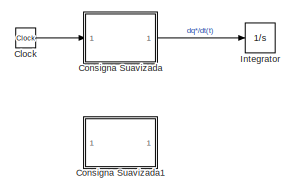
[diagram: root canvas - part 1/2, top left region]
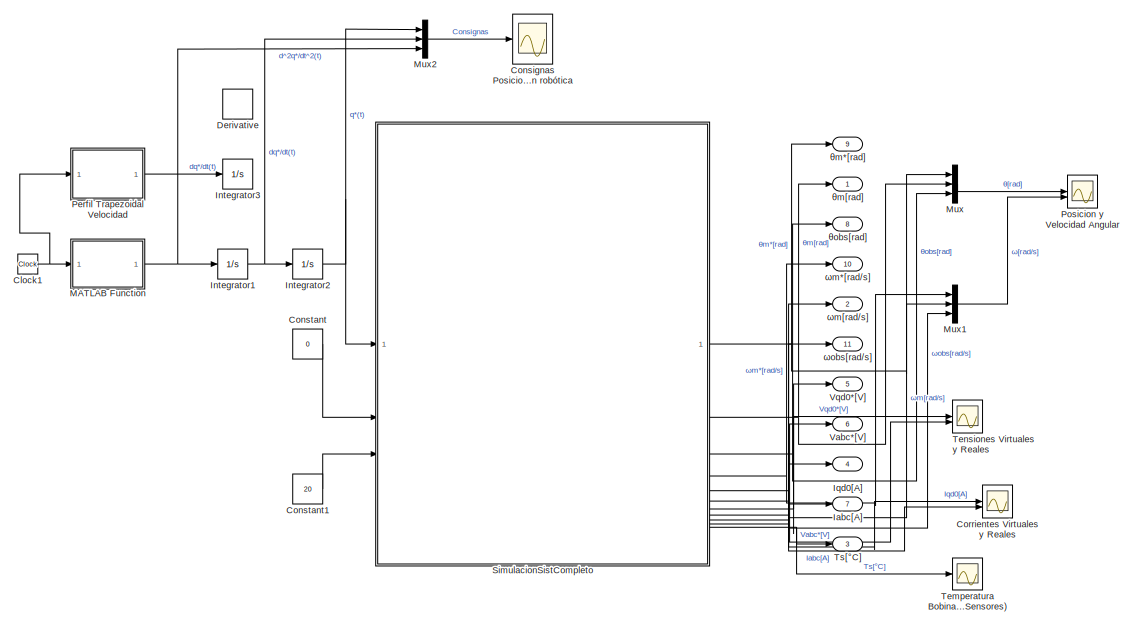
[diagram: root canvas - part 2/2, most of the canvas]
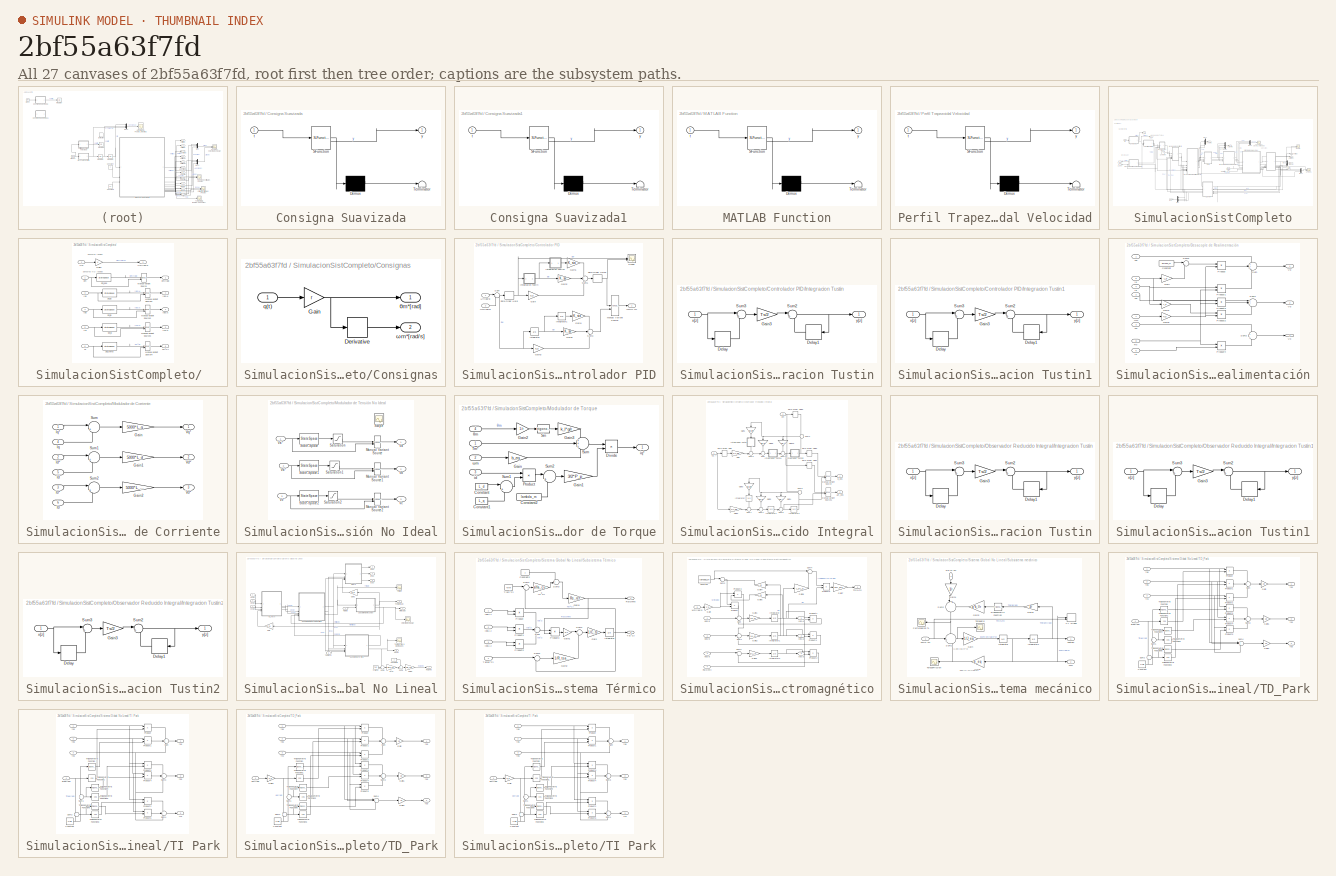
[diagram: thumbnail index - all 27 canvases of the model, root first then tree order]
MODEL slx_2bf55a63f7fd
KIND model
CONFIG AbsTol = auto
CONFIG EnableMultiTasking = off
CONFIG FixedStep = auto
CONFIG MaxStep = auto
CONFIG MinStep = auto
CONFIG RelTol = 1e-3
CONFIG SampleTimeConstraint = Unconstrained
CONFIG SolverName = VariableStepAuto
CONFIG StartTime = 0.0
CONFIG StopTime = 15
BLOCK [Clock] Clock
BLOCK [Clock] Clock1
BLOCK [SubSystem] Consigna Suavizada
  ErrorFcn = Stateflow.Translate.translate
  PermitHierarchicalResolution = ExplicitOnly
  SFBlockType = MATLAB Function
  TreatAsAtomicUnit = on
BLOCK [Demux] Consigna Suavizada/ Demux 
  Outputs = 1
BLOCK [S-Function] Consigna Suavizada/ SFunction 
  EnableBusSupport = on
  FunctionName = sf_sfun
  PortCounts = [1 2]
  SFcnIsStateOwnerBlock = off
  SFunctionDeploymentMode = off
  Tag = Stateflow S-Function 2
BLOCK [Terminator] Consigna Suavizada/ Terminator 
BLOCK [Inport] Consigna Suavizada/t
BLOCK [Outport] Consigna Suavizada/y
BLOCK [SubSystem] Consigna Suavizada1
  ErrorFcn = Stateflow.Translate.translate
  PermitHierarchicalResolution = ExplicitOnly
  SFBlockType = MATLAB Function
  TreatAsAtomicUnit = on
BLOCK [Demux] Consigna Suavizada1/ Demux 
  Outputs = 1
BLOCK [S-Function] Consigna Suavizada1/ SFunction 
  EnableBusSupport = on
  FunctionName = sf_sfun
  PortCounts = [1 2]
  SFcnIsStateOwnerBlock = off
  SFunctionDeploymentMode = off
  Tag = Stateflow S-Function 1
BLOCK [Terminator] Consigna Suavizada1/ Terminator 
BLOCK [Inport] Consigna Suavizada1/t
BLOCK [Outport] Consigna Suavizada1/y
BLOCK [Scope] Consignas Posicion, Velocidad y Aceleracion angular articulación robótica
  Floating = off
  NumInputPorts = 1
  ScopeSpecificationString = Simulink.scopes.TimeScopeBlockCfg('CurrentConfiguration', extmgr.ConfigurationSet(extmgr.Configuration('Core','General UI',true),extmgr.Configuration('Core','Source UI',true),extmgr.Configuration('Sources','WiredSimulink',true,'DataLoggingVariableName','ScopeData1'),extmgr.Configuration('Visuals','Time Domain',true,'SerializedDisplays',{struct('MinYLimReal','-0.82673','MaxYLimReal','7.44061','YLab...<+1518ch>
BLOCK [Constant] Constant
  Value = 0
BLOCK [Constant] Constant1
  Value = 20
BLOCK [Scope] Corrientes Virtuales y Reales
  Floating = off
  NumInputPorts = 2
  ScopeSpecificationString = Simulink.scopes.TimeScopeBlockCfg('CurrentConfiguration', extmgr.ConfigurationSet(extmgr.Configuration('Core','General UI',true),extmgr.Configuration('Core','Source UI',true),extmgr.Configuration('Sources','WiredSimulink',true,'DataLoggingVariableName','ScopeData3'),extmgr.Configuration('Visuals','Time Domain',true,'SerializedDisplays',{struct('MinYLimReal','-0.48628','MaxYLimReal','0.4221','YLabe...<+2135ch>
BLOCK [Derivative] Derivative
BLOCK [Outport] Iabc[A]
  Port = 7
BLOCK [Integrator] Integrator
BLOCK [Integrator] Integrator1
BLOCK [Integrator] Integrator2
BLOCK [Integrator] Integrator3
BLOCK [Outport] Iqd0[A]
  Port = 4
BLOCK [SubSystem] MATLAB Function
  ErrorFcn = Stateflow.Translate.translate
  PermitHierarchicalResolution = ExplicitOnly
  SFBlockType = MATLAB Function
  TreatAsAtomicUnit = on
BLOCK [Demux] MATLAB Function/ Demux 
  Outputs = 1
BLOCK [S-Function] MATLAB Function/ SFunction 
  EnableBusSupport = on
  FunctionName = sf_sfun
  PortCounts = [1 2]
  SFcnIsStateOwnerBlock = off
  SFunctionDeploymentMode = off
  Tag = Stateflow S-Function 3
BLOCK [Terminator] MATLAB Function/ Terminator 
BLOCK [Inport] MATLAB Function/t
BLOCK [Outport] MATLAB Function/y
BLOCK [Mux] Mux
  DisplayOption = bar
  Inputs = 3
BLOCK [Mux] Mux1
  DisplayOption = bar
  Inputs = 3
BLOCK [Mux] Mux2
  DisplayOption = bar
  Inputs = 3
BLOCK [SubSystem] Perfil Trapezoidal Velocidad
  ErrorFcn = Stateflow.Translate.translate
  PermitHierarchicalResolution = ExplicitOnly
  SFBlockType = MATLAB Function
  TreatAsAtomicUnit = on
BLOCK [Demux] Perfil Trapezoidal Velocidad/ Demux 
  Outputs = 1
BLOCK [S-Function] Perfil Trapezoidal Velocidad/ SFunction 
  EnableBusSupport = on
  FunctionName = sf_sfun
  PortCounts = [1 2]
  SFcnIsStateOwnerBlock = off
  SFunctionDeploymentMode = off
  Tag = Stateflow S-Function 4
BLOCK [Terminator] Perfil Trapezoidal Velocidad/ Terminator 
BLOCK [Inport] Perfil Trapezoidal Velocidad/t
BLOCK [Outport] Perfil Trapezoidal Velocidad/y
BLOCK [Scope] Posicion y Velocidad Angular
  Floating = off
  NumInputPorts = 2
  ScopeSpecificationString = Simulink.scopes.TimeScopeBlockCfg('CurrentConfiguration', extmgr.ConfigurationSet(extmgr.Configuration('Core','General UI',true),extmgr.Configuration('Core','Source UI',true),extmgr.Configuration('Sources','WiredSimulink',true,'DataLoggingVariableName','ScopeData2'),extmgr.Configuration('Visuals','Time Domain',true,'SerializedDisplays',{struct('MinYLimReal','-94.47435','MaxYLimReal','848.17849','Y...<+2279ch>
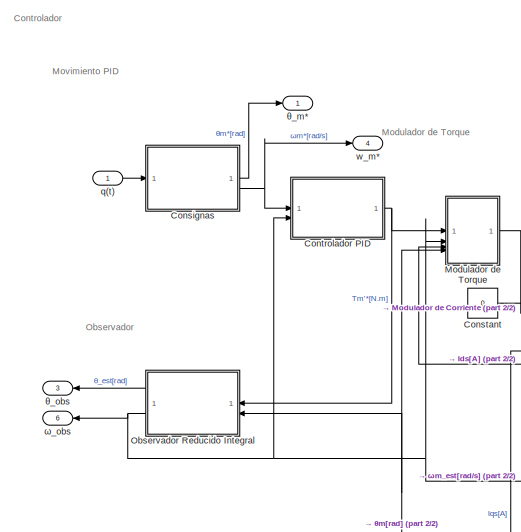
[diagram: SimulacionSistCompleto - part 1/2, middle left region]
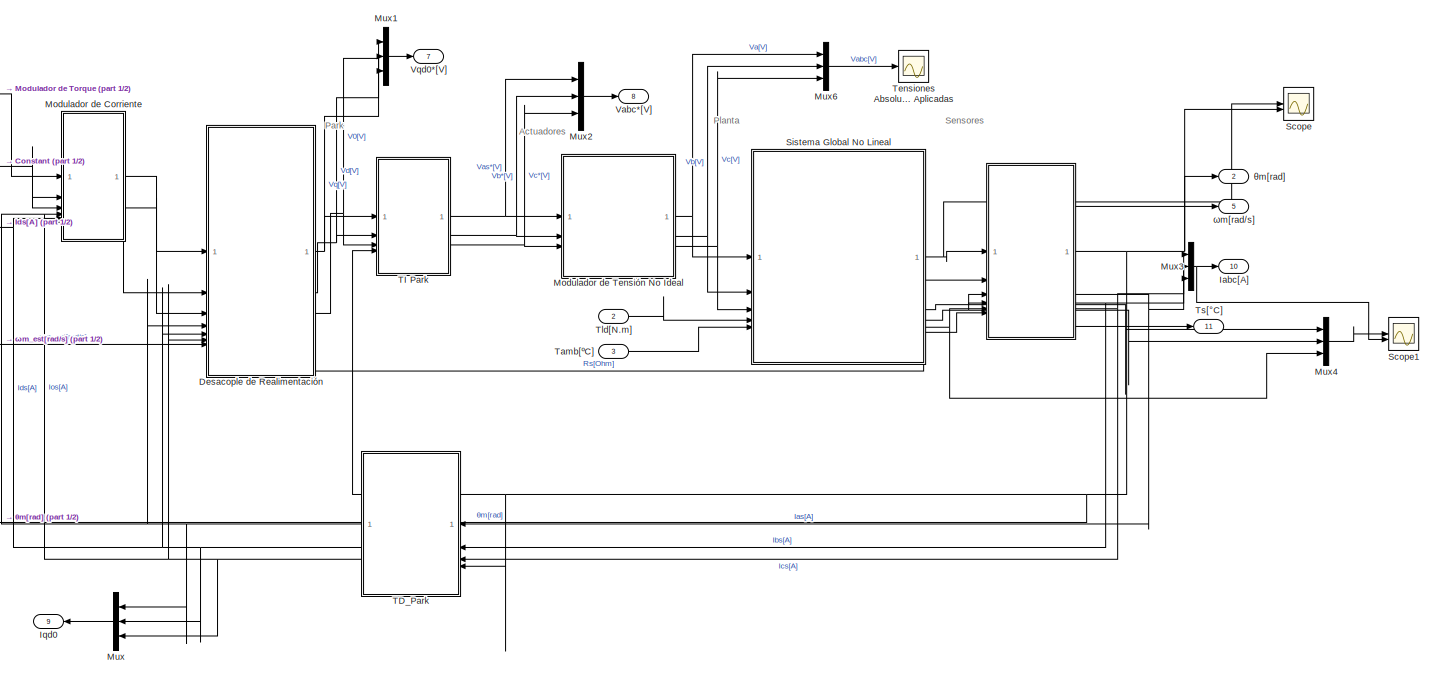
[diagram: SimulacionSistCompleto - part 2/2, most of the canvas]
BLOCK [SubSystem] SimulacionSistCompleto
BLOCK [SubSystem] SimulacionSistCompleto/ 
BLOCK [Gain] SimulacionSistCompleto/ /Gain2
BLOCK [Inport] SimulacionSistCompleto/ /Ias
  Port = 3
BLOCK [Outport] SimulacionSistCompleto/ /Ias[A]
  Port = 3
BLOCK [Inport] SimulacionSistCompleto/ /Ibs
  Port = 4
BLOCK [Outport] SimulacionSistCompleto/ /Ibs[A]
  Port = 4
BLOCK [Inport] SimulacionSistCompleto/ /Ics
  Port = 5
BLOCK [Outport] SimulacionSistCompleto/ /Ics[A]
  Port = 5
BLOCK [Reference] SimulacionSistCompleto/ /Manual Variant Source  REF=simulink/Signal
Routing/Manual
Variant Source
  SourceBlock = simulink/Signal\nRouting/Manual\nVariant Source
  SourceType = ManualVariantSource
BLOCK [Reference] SimulacionSistCompleto/ /Manual Variant Source1  REF=simulink/Signal
Routing/Manual
Variant Source
  SourceBlock = simulink/Signal\nRouting/Manual\nVariant Source
  SourceType = ManualVariantSource
BLOCK [Reference] SimulacionSistCompleto/ /Manual Variant Source2  REF=simulink/Signal
Routing/Manual
Variant Source
  SourceBlock = simulink/Signal\nRouting/Manual\nVariant Source
  SourceType = ManualVariantSource
BLOCK [Reference] SimulacionSistCompleto/ /Manual Variant Source3  REF=simulink/Signal
Routing/Manual
Variant Source
  SourceBlock = simulink/Signal\nRouting/Manual\nVariant Source
  SourceType = ManualVariantSource
BLOCK [Reference] SimulacionSistCompleto/ /Manual Variant Source4  REF=simulink/Signal
Routing/Manual
Variant Source
  SourceBlock = simulink/Signal\nRouting/Manual\nVariant Source
  SourceType = ManualVariantSource
BLOCK [StateSpace] SimulacionSistCompleto/ /Sni_ia
  A = Sni_A_iabc
  B = Sni_B_iabc
  C = Sni_C_iabc
  D = Sni_D_iabc
  InitialCondition = 0
BLOCK [StateSpace] SimulacionSistCompleto/ /Sni_ib
  A = Sni_A_iabc
  B = Sni_B_iabc
  C = Sni_C_iabc
  D = Sni_D_iabc
  InitialCondition = 0
BLOCK [StateSpace] SimulacionSistCompleto/ /Sni_ic
  A = Sni_A_iabc
  B = Sni_B_iabc
  C = Sni_C_iabc
  D = Sni_D_iabc
  InitialCondition = 0
BLOCK [StateSpace] SimulacionSistCompleto/ /Sni_pos
  A = Sni_A_pos
  B = Sni_B_pos
  C = Sni_C_pos
  D = Sni_D_pos
  InitialCondition = 0
BLOCK [StateSpace] SimulacionSistCompleto/ /Sni_temp
  A = Sni_A_T
  B = Sni_B_T
  C = Sni_C_T
  D = Sni_D_T
  InitialCondition = 2
BLOCK [Inport] SimulacionSistCompleto/ /Ts
  Port = 6
BLOCK [Outport] SimulacionSistCompleto/ /Ts[ºC]
  Port = 6
BLOCK [Inport] SimulacionSistCompleto/ /θm
BLOCK [Outport] SimulacionSistCompleto/ /θm[rad]
BLOCK [Inport] SimulacionSistCompleto/ /ωm
  Port = 2
BLOCK [Outport] SimulacionSistCompleto/ /ωm[rad//s]
  Port = 2
BLOCK [SubSystem] SimulacionSistCompleto/Consignas
BLOCK [Derivative] SimulacionSistCompleto/Consignas/Derivative
BLOCK [Gain] SimulacionSistCompleto/Consignas/Gain
  Gain = r
BLOCK [Inport] SimulacionSistCompleto/Consignas/q(t)
BLOCK [Outport] SimulacionSistCompleto/Consignas/θm*[rad]
BLOCK [Outport] SimulacionSistCompleto/Consignas/ωm*[rad//s]
  Port = 2
BLOCK [Constant] SimulacionSistCompleto/Constant
  Value = 0
BLOCK [SubSystem] SimulacionSistCompleto/Controlador PID
BLOCK [Gain] SimulacionSistCompleto/Controlador PID/Gain
  Gain = b_a
BLOCK [Gain] SimulacionSistCompleto/Controlador PID/Gain1
  Gain = K_sia
BLOCK [Gain] SimulacionSistCompleto/Controlador PID/Gain2
  Gain = K_sa
BLOCK [Gain] SimulacionSistCompleto/Controlador PID/Gain3
  Gain = b_a
BLOCK [Gain] SimulacionSistCompleto/Controlador PID/Gain4
  Gain = K_sia
BLOCK [Gain] SimulacionSistCompleto/Controlador PID/Gain5
  Gain = K_sa
BLOCK [SubSystem] SimulacionSistCompleto/Controlador PID/Integracion Tustin
BLOCK [Delay] SimulacionSistCompleto/Controlador PID/Integracion Tustin/Delay
  DelayLength = 1
  InputPortMap = u0
BLOCK [Delay] SimulacionSistCompleto/Controlador PID/Integracion Tustin/Delay1
  DelayLength = 1
  InputPortMap = u0
BLOCK [Gain] SimulacionSistCompleto/Controlador PID/Integracion Tustin/Gain3
  Gain = Ts/2
BLOCK [Sum] SimulacionSistCompleto/Controlador PID/Integracion Tustin/Sum2
  Inputs = |++
BLOCK [Sum] SimulacionSistCompleto/Controlador PID/Integracion Tustin/Sum3
  Inputs = |++
BLOCK [Inport] SimulacionSistCompleto/Controlador PID/Integracion Tustin/x[z]
BLOCK [Outport] SimulacionSistCompleto/Controlador PID/Integracion Tustin/y[z]
BLOCK [SubSystem] SimulacionSistCompleto/Controlador PID/Integracion Tustin1
BLOCK [Delay] SimulacionSistCompleto/Controlador PID/Integracion Tustin1/Delay
  DelayLength = 1
  InputPortMap = u0
BLOCK [Delay] SimulacionSistCompleto/Controlador PID/Integracion Tustin1/Delay1
  DelayLength = 1
  InputPortMap = u0
BLOCK [Gain] SimulacionSistCompleto/Controlador PID/Integracion Tustin1/Gain3
  Gain = Ts/2
BLOCK [Sum] SimulacionSistCompleto/Controlador PID/Integracion Tustin1/Sum2
  Inputs = |++
BLOCK [Sum] SimulacionSistCompleto/Controlador PID/Integracion Tustin1/Sum3
  Inputs = |++
BLOCK [Inport] SimulacionSistCompleto/Controlador PID/Integracion Tustin1/x[z]
BLOCK [Outport] SimulacionSistCompleto/Controlador PID/Integracion Tustin1/y[z]
BLOCK [Integrator] SimulacionSistCompleto/Controlador PID/Integrator
BLOCK [Integrator] SimulacionSistCompleto/Controlador PID/Integrator1
BLOCK [Reference] SimulacionSistCompleto/Controlador PID/Manual Variant Source  REF=simulink/Signal
Routing/Manual
Variant Source
  SourceBlock = simulink/Signal\nRouting/Manual\nVariant Source
  SourceType = ManualVariantSource
BLOCK [Scope] SimulacionSistCompleto/Controlador PID/Scope
  Floating = off
  NumInputPorts = 2
  ScopeSpecificationString = Simulink.scopes.TimeScopeBlockCfg('CurrentConfiguration', extmgr.ConfigurationSet(extmgr.Configuration('Core','General UI',true),extmgr.Configuration('Core','Source UI',true),extmgr.Configuration('Sources','WiredSimulink',true,'DataLoggingVariableName','ScopeData1'),extmgr.Configuration('Visuals','Time Domain',true,'SerializedDisplays',{struct('MinYLimReal','-338.56929','MaxYLimReal','499.25446','...<+2398ch>
BLOCK [Sum] SimulacionSistCompleto/Controlador PID/Sum
  Inputs = |+-
BLOCK [Sum] SimulacionSistCompleto/Controlador PID/Sum1
  Inputs = +++
BLOCK [Sum] SimulacionSistCompleto/Controlador PID/Sum3
  Inputs = +++
BLOCK [Outport] SimulacionSistCompleto/Controlador PID/T*'m[N.m]
BLOCK [ZeroOrderHold] SimulacionSistCompleto/Controlador PID/Zero-Order Hold
  SampleTime = Ts
BLOCK [ZeroOrderHold] SimulacionSistCompleto/Controlador PID/Zero-Order Hold1
  SampleTime = Ts
BLOCK [Inport] SimulacionSistCompleto/Controlador PID/ω*[rad//s]
BLOCK [Inport] SimulacionSistCompleto/Controlador PID/ωm[rad//s]
  Port = 2
BLOCK [SubSystem] SimulacionSistCompleto/Desacople de Realimentación
BLOCK [Constant] SimulacionSistCompleto/Desacople de Realimentación/Constant
  Value = lambda_m
BLOCK [Gain] SimulacionSistCompleto/Desacople de Realimentación/Gain
  Gain = L_d
BLOCK [Gain] SimulacionSistCompleto/Desacople de Realimentación/Gain1
  Gain = L_q
BLOCK [Gain] SimulacionSistCompleto/Desacople de Realimentación/Gain2
  Gain = P_p
BLOCK [Product] SimulacionSistCompleto/Desacople de Realimentación/Product
BLOCK [Product] SimulacionSistCompleto/Desacople de Realimentación/Product1
BLOCK [Product] SimulacionSistCompleto/Desacople de Realimentación/Product2
BLOCK [Product] SimulacionSistCompleto/Desacople de Realimentación/Product3
BLOCK [Product] SimulacionSistCompleto/Desacople de Realimentación/Product4
BLOCK [Inport] SimulacionSistCompleto/Desacople de Realimentación/Rs
  Port = 8
BLOCK [Sum] SimulacionSistCompleto/Desacople de Realimentación/Sum
  Inputs = +++
BLOCK [Sum] SimulacionSistCompleto/Desacople de Realimentación/Sum1
  Inputs = ++-
BLOCK [Sum] SimulacionSistCompleto/Desacople de Realimentación/Sum2
  Inputs = +|+
BLOCK [Sum] SimulacionSistCompleto/Desacople de Realimentación/Sum3
  Inputs = |++
BLOCK [Outport] SimulacionSistCompleto/Desacople de Realimentación/V0
  Port = 3
BLOCK [Outport] SimulacionSistCompleto/Desacople de Realimentación/Vd
  Port = 2
BLOCK [Outport] SimulacionSistCompleto/Desacople de Realimentación/Vq
BLOCK [Inport] SimulacionSistCompleto/Desacople de Realimentación/i0
  Port = 6
BLOCK [Inport] SimulacionSistCompleto/Desacople de Realimentación/id
  Port = 5
BLOCK [Inport] SimulacionSistCompleto/Desacople de Realimentación/iq
  Port = 4
BLOCK [Inport] SimulacionSistCompleto/Desacople de Realimentación/v0*
  Port = 3
BLOCK [Inport] SimulacionSistCompleto/Desacople de Realimentación/vd*
  Port = 2
BLOCK [Inport] SimulacionSistCompleto/Desacople de Realimentación/vq*
BLOCK [Inport] SimulacionSistCompleto/Desacople de Realimentación/ωm
  Port = 7
BLOCK [Outport] SimulacionSistCompleto/Iabc[A]
  Port = 10
BLOCK [Outport] SimulacionSistCompleto/Iqd0
  Port = 9
BLOCK [SubSystem] SimulacionSistCompleto/Modulador de Corriente
  NameLocation = top
BLOCK [Gain] SimulacionSistCompleto/Modulador de Corriente/Gain
  Gain = 5000*L_q
BLOCK [Gain] SimulacionSistCompleto/Modulador de Corriente/Gain1
  Gain = 5000*L_d
BLOCK [Gain] SimulacionSistCompleto/Modulador de Corriente/Gain2
  Gain = 5000*L_ls
BLOCK [Inport] SimulacionSistCompleto/Modulador de Corriente/I0
  Port = 6
BLOCK [Inport] SimulacionSistCompleto/Modulador de Corriente/I0*
  Port = 3
BLOCK [Inport] SimulacionSistCompleto/Modulador de Corriente/Id
  Port = 5
BLOCK [Inport] SimulacionSistCompleto/Modulador de Corriente/Id*
  Port = 2
BLOCK [Inport] SimulacionSistCompleto/Modulador de Corriente/Iq
  Port = 4
BLOCK [Inport] SimulacionSistCompleto/Modulador de Corriente/Iq*
BLOCK [Sum] SimulacionSistCompleto/Modulador de Corriente/Sum
  Inputs = |+-
BLOCK [Sum] SimulacionSistCompleto/Modulador de Corriente/Sum1
  Inputs = |+-
BLOCK [Sum] SimulacionSistCompleto/Modulador de Corriente/Sum2
  Inputs = |+-
BLOCK [Outport] SimulacionSistCompleto/Modulador de Corriente/V0*
  Port = 3
BLOCK [Outport] SimulacionSistCompleto/Modulador de Corriente/Vd*
  Port = 2
BLOCK [Outport] SimulacionSistCompleto/Modulador de Corriente/Vq*
BLOCK [SubSystem] SimulacionSistCompleto/Modulador de Tensión No Ideal
BLOCK [Reference] SimulacionSistCompleto/Modulador de Tensión No Ideal/Manual Variant Source  REF=simulink/Signal
Routing/Manual
Variant Source
  SourceBlock = simulink/Signal\nRouting/Manual\nVariant Source
  SourceType = ManualVariantSource
BLOCK [Reference] SimulacionSistCompleto/Modulador de Tensión No Ideal/Manual Variant Source1  REF=simulink/Signal
Routing/Manual
Variant Source
  SourceBlock = simulink/Signal\nRouting/Manual\nVariant Source
  SourceType = ManualVariantSource
BLOCK [Reference] SimulacionSistCompleto/Modulador de Tensión No Ideal/Manual Variant Source2  REF=simulink/Signal
Routing/Manual
Variant Source
  SourceBlock = simulink/Signal\nRouting/Manual\nVariant Source
  SourceType = ManualVariantSource
BLOCK [Saturate] SimulacionSistCompleto/Modulador de Tensión No Ideal/Saturation
  LowerLimit = -sqrt(2/3)*V_slmax
  UpperLimit = sqrt(2/3)*V_slmax
BLOCK [Saturate] SimulacionSistCompleto/Modulador de Tensión No Ideal/Saturation1
  LowerLimit = -sqrt(2/3)*V_slmax
  UpperLimit = sqrt(2/3)*V_slmax
BLOCK [Saturate] SimulacionSistCompleto/Modulador de Tensión No Ideal/Saturation2
  LowerLimit = -sqrt(2/3)*V_slmax
  UpperLimit = sqrt(2/3)*V_slmax
BLOCK [Scope] SimulacionSistCompleto/Modulador de Tensión No Ideal/Scope
  Floating = off
  NumInputPorts = 2
  ScopeSpecificationString = Simulink.scopes.TimeScopeBlockCfg('CurrentConfiguration', extmgr.ConfigurationSet(extmgr.Configuration('Core','General UI',true),extmgr.Configuration('Core','Source UI',true),extmgr.Configuration('Sources','WiredSimulink',true,'DataLoggingVariableName','ScopeData2'),extmgr.Configuration('Visuals','Time Domain',true,'SerializedDisplays',{struct('MinYLimReal','-504128608.68194','MaxYLimReal','491194...<+2159ch>
BLOCK [StateSpace] SimulacionSistCompleto/Modulador de Tensión No Ideal/State-Space
  A = Mni_A
  B = Mni_B
  C = Mni_C
  D = Mni_D
  InitialCondition = 0
BLOCK [StateSpace] SimulacionSistCompleto/Modulador de Tensión No Ideal/State-Space1
  A = Mni_A
  B = Mni_B
  C = Mni_C
  D = Mni_D
  InitialCondition = 0
BLOCK [StateSpace] SimulacionSistCompleto/Modulador de Tensión No Ideal/State-Space2
  A = Mni_A
  B = Mni_B
  C = Mni_C
  D = Mni_D
  InitialCondition = 0
BLOCK [Outport] SimulacionSistCompleto/Modulador de Tensión No Ideal/Va
BLOCK [Inport] SimulacionSistCompleto/Modulador de Tensión No Ideal/Va*
BLOCK [Outport] SimulacionSistCompleto/Modulador de Tensión No Ideal/Vb
  Port = 2
BLOCK [Inport] SimulacionSistCompleto/Modulador de Tensión No Ideal/Vb* 
  Port = 2
BLOCK [Outport] SimulacionSistCompleto/Modulador de Tensión No Ideal/Vc
  Port = 3
BLOCK [Inport] SimulacionSistCompleto/Modulador de Tensión No Ideal/Vc*
  Port = 3
BLOCK [SubSystem] SimulacionSistCompleto/Modulador de Torque
BLOCK [Constant] SimulacionSistCompleto/Modulador de Torque/Constant
  Value = L_d
BLOCK [Constant] SimulacionSistCompleto/Modulador de Torque/Constant1
  Value = L_q
BLOCK [Constant] SimulacionSistCompleto/Modulador de Torque/Constant2
  Value = lambda_m
BLOCK [Product] SimulacionSistCompleto/Modulador de Torque/Divide
  Inputs = */
BLOCK [Gain] SimulacionSistCompleto/Modulador de Torque/Gain
  Gain = b_eq
BLOCK [Gain] SimulacionSistCompleto/Modulador de Torque/Gain1
  Gain = 3/2*P_p
BLOCK [Gain] SimulacionSistCompleto/Modulador de Torque/Gain2
  Gain = 1/r
BLOCK [Gain] SimulacionSistCompleto/Modulador de Torque/Gain3
  Gain = k_l*g/r
BLOCK [Product] SimulacionSistCompleto/Modulador de Torque/Product
BLOCK [Trigonometry] SimulacionSistCompleto/Modulador de Torque/Sin
BLOCK [Sum] SimulacionSistCompleto/Modulador de Torque/Sum
  Inputs = +++
BLOCK [Sum] SimulacionSistCompleto/Modulador de Torque/Sum1
  Inputs = |+-
BLOCK [Sum] SimulacionSistCompleto/Modulador de Torque/Sum2
  Inputs = |++
BLOCK [Inport] SimulacionSistCompleto/Modulador de Torque/Tm*
BLOCK [Inport] SimulacionSistCompleto/Modulador de Torque/id
  Port = 3
BLOCK [Outport] SimulacionSistCompleto/Modulador de Torque/iq*
BLOCK [Inport] SimulacionSistCompleto/Modulador de Torque/θm
  Port = 4
BLOCK [Inport] SimulacionSistCompleto/Modulador de Torque/ωm
  Port = 2
BLOCK [Mux] SimulacionSistCompleto/Mux
  DisplayOption = bar
  Inputs = 3
BLOCK [Mux] SimulacionSistCompleto/Mux1
  DisplayOption = bar
  Inputs = 3
BLOCK [Mux] SimulacionSistCompleto/Mux2
  DisplayOption = bar
  Inputs = 3
BLOCK [Mux] SimulacionSistCompleto/Mux3
  DisplayOption = bar
  Inputs = 3
BLOCK [Mux] SimulacionSistCompleto/Mux4
  DisplayOption = bar
  Inputs = 3
BLOCK [Mux] SimulacionSistCompleto/Mux6
  DisplayOption = bar
  Inputs = 3
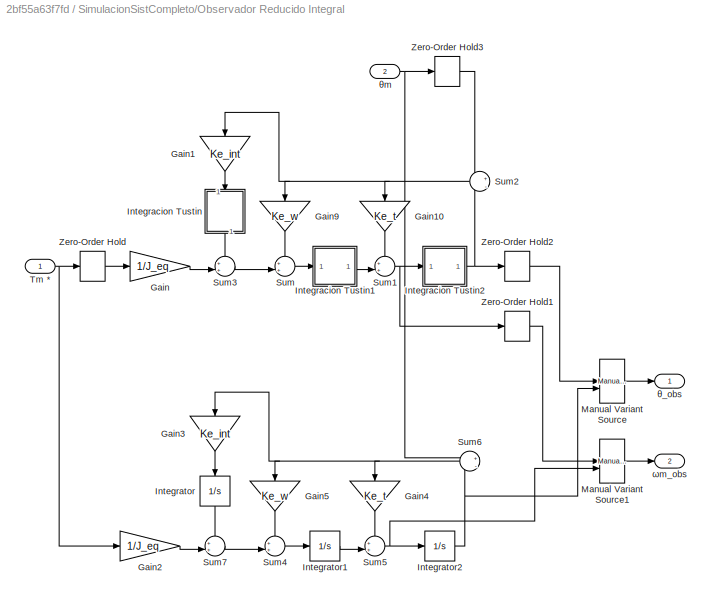
BLOCK [SubSystem] SimulacionSistCompleto/Observador Reducido Integral
BLOCK [Gain] SimulacionSistCompleto/Observador Reducido Integral/Gain
  Gain = 1/J_eq
BLOCK [Gain] SimulacionSistCompleto/Observador Reducido Integral/Gain1
  Gain = Ke_int
  NameLocation = left
BLOCK [Gain] SimulacionSistCompleto/Observador Reducido Integral/Gain10
  Gain = Ke_t
  NameLocation = left
BLOCK [Gain] SimulacionSistCompleto/Observador Reducido Integral/Gain2
  Gain = 1/J_eq
BLOCK [Gain] SimulacionSistCompleto/Observador Reducido Integral/Gain3
  Gain = Ke_int
  NameLocation = left
BLOCK [Gain] SimulacionSistCompleto/Observador Reducido Integral/Gain4
  Gain = Ke_t
  NameLocation = left
BLOCK [Gain] SimulacionSistCompleto/Observador Reducido Integral/Gain5
  Gain = Ke_w
  NameLocation = left
BLOCK [Gain] SimulacionSistCompleto/Observador Reducido Integral/Gain9
  Gain = Ke_w
  NameLocation = left
BLOCK [SubSystem] SimulacionSistCompleto/Observador Reducido Integral/Integracion Tustin
  NameLocation = left
BLOCK [Delay] SimulacionSistCompleto/Observador Reducido Integral/Integracion Tustin/Delay
  DelayLength = 1
  InputPortMap = u0
BLOCK [Delay] SimulacionSistCompleto/Observador Reducido Integral/Integracion Tustin/Delay1
  DelayLength = 1
  InputPortMap = u0
BLOCK [Gain] SimulacionSistCompleto/Observador Reducido Integral/Integracion Tustin/Gain3
  Gain = Ts/2
BLOCK [Sum] SimulacionSistCompleto/Observador Reducido Integral/Integracion Tustin/Sum2
  Inputs = |++
BLOCK [Sum] SimulacionSistCompleto/Observador Reducido Integral/Integracion Tustin/Sum3
  Inputs = |++
BLOCK [Inport] SimulacionSistCompleto/Observador Reducido Integral/Integracion Tustin/x[z]
BLOCK [Outport] SimulacionSistCompleto/Observador Reducido Integral/Integracion Tustin/y[z]
BLOCK [SubSystem] SimulacionSistCompleto/Observador Reducido Integral/Integracion Tustin1
BLOCK [Delay] SimulacionSistCompleto/Observador Reducido Integral/Integracion Tustin1/Delay
  DelayLength = 1
  InputPortMap = u0
BLOCK [Delay] SimulacionSistCompleto/Observador Reducido Integral/Integracion Tustin1/Delay1
  DelayLength = 1
  InputPortMap = u0
BLOCK [Gain] SimulacionSistCompleto/Observador Reducido Integral/Integracion Tustin1/Gain3
  Gain = Ts/2
BLOCK [Sum] SimulacionSistCompleto/Observador Reducido Integral/Integracion Tustin1/Sum2
  Inputs = |++
BLOCK [Sum] SimulacionSistCompleto/Observador Reducido Integral/Integracion Tustin1/Sum3
  Inputs = |++
BLOCK [Inport] SimulacionSistCompleto/Observador Reducido Integral/Integracion Tustin1/x[z]
BLOCK [Outport] SimulacionSistCompleto/Observador Reducido Integral/Integracion Tustin1/y[z]
BLOCK [SubSystem] SimulacionSistCompleto/Observador Reducido Integral/Integracion Tustin2
BLOCK [Delay] SimulacionSistCompleto/Observador Reducido Integral/Integracion Tustin2/Delay
  DelayLength = 1
  InputPortMap = u0
BLOCK [Delay] SimulacionSistCompleto/Observador Reducido Integral/Integracion Tustin2/Delay1
  DelayLength = 1
  InputPortMap = u0
BLOCK [Gain] SimulacionSistCompleto/Observador Reducido Integral/Integracion Tustin2/Gain3
  Gain = Ts/2
BLOCK [Sum] SimulacionSistCompleto/Observador Reducido Integral/Integracion Tustin2/Sum2
  Inputs = |++
BLOCK [Sum] SimulacionSistCompleto/Observador Reducido Integral/Integracion Tustin2/Sum3
  Inputs = |++
BLOCK [Inport] SimulacionSistCompleto/Observador Reducido Integral/Integracion Tustin2/x[z]
BLOCK [Outport] SimulacionSistCompleto/Observador Reducido Integral/Integracion Tustin2/y[z]
BLOCK [Integrator] SimulacionSistCompleto/Observador Reducido Integral/Integrator
  NameLocation = left
BLOCK [Integrator] SimulacionSistCompleto/Observador Reducido Integral/Integrator1
BLOCK [Integrator] SimulacionSistCompleto/Observador Reducido Integral/Integrator2
BLOCK [Reference] SimulacionSistCompleto/Observador Reducido Integral/Manual Variant Source  REF=simulink/Signal
Routing/Manual
Variant Source
  SourceBlock = simulink/Signal\nRouting/Manual\nVariant Source
  SourceType = ManualVariantSource
BLOCK [Reference] SimulacionSistCompleto/Observador Reducido Integral/Manual Variant Source1  REF=simulink/Signal
Routing/Manual
Variant Source
  SourceBlock = simulink/Signal\nRouting/Manual\nVariant Source
  SourceType = ManualVariantSource
BLOCK [Sum] SimulacionSistCompleto/Observador Reducido Integral/Sum
  Inputs = ++|
BLOCK [Sum] SimulacionSistCompleto/Observador Reducido Integral/Sum1
  Inputs = ++|
BLOCK [Sum] SimulacionSistCompleto/Observador Reducido Integral/Sum2
  Inputs = +|-
BLOCK [Sum] SimulacionSistCompleto/Observador Reducido Integral/Sum3
  Inputs = ++|
BLOCK [Sum] SimulacionSistCompleto/Observador Reducido Integral/Sum4
  Inputs = ++|
BLOCK [Sum] SimulacionSistCompleto/Observador Reducido Integral/Sum5
  Inputs = ++|
BLOCK [Sum] SimulacionSistCompleto/Observador Reducido Integral/Sum6
  Inputs = +|-
BLOCK [Sum] SimulacionSistCompleto/Observador Reducido Integral/Sum7
  Inputs = ++|
BLOCK [Inport] SimulacionSistCompleto/Observador Reducido Integral/Tm *
BLOCK [ZeroOrderHold] SimulacionSistCompleto/Observador Reducido Integral/Zero-Order Hold
  SampleTime = -1
BLOCK [ZeroOrderHold] SimulacionSistCompleto/Observador Reducido Integral/Zero-Order Hold1
  SampleTime = -1
BLOCK [ZeroOrderHold] SimulacionSistCompleto/Observador Reducido Integral/Zero-Order Hold2
  SampleTime = -1
BLOCK [ZeroOrderHold] SimulacionSistCompleto/Observador Reducido Integral/Zero-Order Hold3
  SampleTime = -1
BLOCK [Outport] SimulacionSistCompleto/Observador Reducido Integral/θ_obs
BLOCK [Inport] SimulacionSistCompleto/Observador Reducido Integral/θm
  Port = 2
BLOCK [Outport] SimulacionSistCompleto/Observador Reducido Integral/ωm_obs
  Port = 2
BLOCK [Scope] SimulacionSistCompleto/Scope
  Floating = off
  NumInputPorts = 2
  ScopeSpecificationString = Simulink.scopes.TimeScopeBlockCfg('CurrentConfiguration', extmgr.ConfigurationSet(extmgr.Configuration('Core','General UI',true),extmgr.Configuration('Core','Source UI',true),extmgr.Configuration('Sources','WiredSimulink',true,'DataLoggingVariableName','ScopeData3'),extmgr.Configuration('Visuals','Time Domain',true,'SerializedDisplays',{struct('MinYLimReal','-94.47329','MaxYLimReal','848.17837','Y...<+1488ch>
BLOCK [Scope] SimulacionSistCompleto/Scope1
  Floating = off
  NumInputPorts = 2
  ScopeSpecificationString = Simulink.scopes.TimeScopeBlockCfg('CurrentConfiguration', extmgr.ConfigurationSet(extmgr.Configuration('Core','General UI',true),extmgr.Configuration('Core','Source UI',true),extmgr.Configuration('Sources','WiredSimulink',true,'DataLoggingVariableName','ScopeData4'),extmgr.Configuration('Visuals','Time Domain',true,'SerializedDisplays',{struct('MinYLimReal','-43.69402','MaxYLimReal','47.60194','YL...<+1690ch>
BLOCK [SubSystem] SimulacionSistCompleto/Sistema Global No Lineal
  PortSchema = {"entries":[{"content":{"sides":[{"content":{"connectorIds":["In1","In2","In3","In4","In5"]},"type":"ConnectorPlacement.EquallySpacedRectSide","uuid":"e69950d9-128a-479c-bb9c-058e9f1d4c4a"},{"content":{"connectorIds":["Out1","Out2","Out3","Out4","Out5","Out6"],"side":"RIGHT"},"type":"ConnectorPlacement.EquallySpacedRectSide","uuid":"1754f544-d789-47dd-8fe5-32cce928f6e8"},{"content":{"side":"TOP"},...<+431ch>
BLOCK [Constant] SimulacionSistCompleto/Sistema Global No Lineal/Constant2
BLOCK [Gain] SimulacionSistCompleto/Sistema Global No Lineal/Gain
  Gain = P_p
BLOCK [Gain] SimulacionSistCompleto/Sistema Global No Lineal/Gain2
  Gain = P_p
BLOCK [Gain] SimulacionSistCompleto/Sistema Global No Lineal/Gain8
  Gain = Rs_ref
BLOCK [Outport] SimulacionSistCompleto/Sistema Global No Lineal/Ias[A]
  Port = 3
BLOCK [Outport] SimulacionSistCompleto/Sistema Global No Lineal/Ibs[A]
  Port = 4
BLOCK [Outport] SimulacionSistCompleto/Sistema Global No Lineal/Ics[A]
  Port = 5
BLOCK [Outport] SimulacionSistCompleto/Sistema Global No Lineal/Rs[Ohm]
  Port = 7
BLOCK [SubSystem] SimulacionSistCompleto/Sistema Global No Lineal/Subsistema Térmico
BLOCK [Constant] SimulacionSistCompleto/Sistema Global No Lineal/Subsistema Térmico/Constant2
BLOCK [Gain] SimulacionSistCompleto/Sistema Global No Lineal/Subsistema Térmico/Gain
  Gain = 1/C_ts
BLOCK [Gain] SimulacionSistCompleto/Sistema Global No Lineal/Subsistema Térmico/Gain1
  Gain = 3/2
BLOCK [Gain] SimulacionSistCompleto/Sistema Global No Lineal/Subsistema Térmico/Gain2
  Gain = 1/R_tsamb
BLOCK [Gain] SimulacionSistCompleto/Sistema Global No Lineal/Subsistema Térmico/Gain4
  Gain = Rs_ref
BLOCK [Inport] SimulacionSistCompleto/Sistema Global No Lineal/Subsistema Térmico/Ids[A]
  Port = 2
BLOCK [Integrator] SimulacionSistCompleto/Sistema Global No Lineal/Subsistema Térmico/Integrator
  InitialCondition = Ts_0
BLOCK [Inport] SimulacionSistCompleto/Sistema Global No Lineal/Subsistema Térmico/Ios[A]
  Port = 3
BLOCK [Inport] SimulacionSistCompleto/Sistema Global No Lineal/Subsistema Térmico/Iqs[A]
BLOCK [Product] SimulacionSistCompleto/Sistema Global No Lineal/Subsistema Térmico/Product
BLOCK [Product] SimulacionSistCompleto/Sistema Global No Lineal/Subsistema Térmico/Product1
BLOCK [Product] SimulacionSistCompleto/Sistema Global No Lineal/Subsistema Térmico/Product2
BLOCK [Product] SimulacionSistCompleto/Sistema Global No Lineal/Subsistema Térmico/Product3
BLOCK [Outport] SimulacionSistCompleto/Sistema Global No Lineal/Subsistema Térmico/Rs[Ohm]
BLOCK [Sum] SimulacionSistCompleto/Sistema Global No Lineal/Subsistema Térmico/Sum
  Inputs = +++
BLOCK [Sum] SimulacionSistCompleto/Sistema Global No Lineal/Subsistema Térmico/Sum1
  Inputs = |+-
BLOCK [Sum] SimulacionSistCompleto/Sistema Global No Lineal/Subsistema Térmico/Sum2
  Inputs = |-+
BLOCK [Sum] SimulacionSistCompleto/Sistema Global No Lineal/Subsistema Térmico/Sum3
  Inputs = ++|
BLOCK [Sum] SimulacionSistCompleto/Sistema Global No Lineal/Subsistema Térmico/Sum4
  Inputs = |-+
BLOCK [Inport] SimulacionSistCompleto/Sistema Global No Lineal/Subsistema Térmico/Tamb[ºC]
  Port = 4
BLOCK [Constant] SimulacionSistCompleto/Sistema Global No Lineal/Subsistema Térmico/Tref[ºC]
  Value = Tsref
BLOCK [Outport] SimulacionSistCompleto/Sistema Global No Lineal/Subsistema Térmico/Ts[ºC]
  Port = 2
BLOCK [Gain] SimulacionSistCompleto/Sistema Global No Lineal/Subsistema Térmico/[1//ºC]
  Gain = alfa_cu
BLOCK [SubSystem] SimulacionSistCompleto/Sistema Global No Lineal/Subsistema electromagnético
BLOCK [Constant] SimulacionSistCompleto/Sistema Global No Lineal/Subsistema electromagnético/Constant
  Value = lambda_m
BLOCK [Gain] SimulacionSistCompleto/Sistema Global No Lineal/Subsistema electromagnético/Gain
  Gain = P_p
BLOCK [Gain] SimulacionSistCompleto/Sistema Global No Lineal/Subsistema electromagnético/Gain1
  Gain = 1/L_q
BLOCK [Gain] SimulacionSistCompleto/Sistema Global No Lineal/Subsistema electromagnético/Gain2
  Gain = 1/L_d
BLOCK [Gain] SimulacionSistCompleto/Sistema Global No Lineal/Subsistema electromagnético/Gain3
  Gain = 1/L_ls
BLOCK [Gain] SimulacionSistCompleto/Sistema Global No Lineal/Subsistema electromagnético/Gain4
  Gain = L_d
BLOCK [Gain] SimulacionSistCompleto/Sistema Global No Lineal/Subsistema electromagnético/Gain5
  Gain = L_q
BLOCK [Gain] SimulacionSistCompleto/Sistema Global No Lineal/Subsistema electromagnético/Gain6
  Gain = L_d-L_q
BLOCK [Gain] SimulacionSistCompleto/Sistema Global No Lineal/Subsistema electromagnético/Gain7
  Gain = 3*P_p/2
BLOCK [Outport] SimulacionSistCompleto/Sistema Global No Lineal/Subsistema electromagnético/Ids[A]
  Port = 2
BLOCK [Integrator] SimulacionSistCompleto/Sistema Global No Lineal/Subsistema electromagnético/Integrator
BLOCK [Integrator] SimulacionSistCompleto/Sistema Global No Lineal/Subsistema electromagnético/Integrator1
  InitialCondition = -0.5
BLOCK [Integrator] SimulacionSistCompleto/Sistema Global No Lineal/Subsistema electromagnético/Integrator2
BLOCK [Outport] SimulacionSistCompleto/Sistema Global No Lineal/Subsistema electromagnético/Ios[A]
  Port = 3
BLOCK [Outport] SimulacionSistCompleto/Sistema Global No Lineal/Subsistema electromagnético/Iqs[A]
BLOCK [Product] SimulacionSistCompleto/Sistema Global No Lineal/Subsistema electromagnético/Product
BLOCK [Product] SimulacionSistCompleto/Sistema Global No Lineal/Subsistema electromagnético/Product1
BLOCK [Product] SimulacionSistCompleto/Sistema Global No Lineal/Subsistema electromagnético/Product2
BLOCK [Product] SimulacionSistCompleto/Sistema Global No Lineal/Subsistema electromagnético/Product3
BLOCK [Product] SimulacionSistCompleto/Sistema Global No Lineal/Subsistema electromagnético/Product4
BLOCK [Product] SimulacionSistCompleto/Sistema Global No Lineal/Subsistema electromagnético/Product5
BLOCK [Inport] SimulacionSistCompleto/Sistema Global No Lineal/Subsistema electromagnético/Rs[Ohm]
  Port = 4
BLOCK [Sum] SimulacionSistCompleto/Sistema Global No Lineal/Subsistema electromagnético/Sum
  Inputs = -+-
BLOCK [Sum] SimulacionSistCompleto/Sistema Global No Lineal/Subsistema electromagnético/Sum1
  Inputs = ++-
BLOCK [Sum] SimulacionSistCompleto/Sistema Global No Lineal/Subsistema electromagnético/Sum2
  Inputs = |++
BLOCK [Sum] SimulacionSistCompleto/Sistema Global No Lineal/Subsistema electromagnético/Sum3
  Inputs = |+-
BLOCK [Sum] SimulacionSistCompleto/Sistema Global No Lineal/Subsistema electromagnético/Sum4
  Inputs = |++
BLOCK [Outport] SimulacionSistCompleto/Sistema Global No Lineal/Subsistema electromagnético/Tm[N.m]
  Port = 4
BLOCK [Inport] SimulacionSistCompleto/Sistema Global No Lineal/Subsistema electromagnético/Vds[V]
  Port = 2
BLOCK [Inport] SimulacionSistCompleto/Sistema Global No Lineal/Subsistema electromagnético/Vos[V]
  Port = 3
BLOCK [Inport] SimulacionSistCompleto/Sistema Global No Lineal/Subsistema electromagnético/Vqs[V]
BLOCK [Inport] SimulacionSistCompleto/Sistema Global No Lineal/Subsistema electromagnético/Wm[rad//s]
  Port = 5
BLOCK [SubSystem] SimulacionSistCompleto/Sistema Global No Lineal/Subsistema mecánico
BLOCK [Gain] SimulacionSistCompleto/Sistema Global No Lineal/Subsistema mecánico/Gain
  Gain = 1/J_eq
BLOCK [Gain] SimulacionSistCompleto/Sistema Global No Lineal/Subsistema mecánico/Gain1
  Gain = b_eq
BLOCK [Gain] SimulacionSistCompleto/Sistema Global No Lineal/Subsistema mecánico/Gain2
  Gain = g*k_l/r
BLOCK [Gain] SimulacionSistCompleto/Sistema Global No Lineal/Subsistema mecánico/Gain3
  Gain = 1/r
BLOCK [Gain] SimulacionSistCompleto/Sistema Global No Lineal/Subsistema mecánico/Gain4
  Gain = 1/r
  NameLocation = left
BLOCK [Integrator] SimulacionSistCompleto/Sistema Global No Lineal/Subsistema mecánico/Integrator
BLOCK [Integrator] SimulacionSistCompleto/Sistema Global No Lineal/Subsistema mecánico/Integrator1
  InitialCondition = Tita_0
BLOCK [Scope] SimulacionSistCompleto/Sistema Global No Lineal/Subsistema mecánico/Perturbacion TL
  Floating = off
  NumInputPorts = 1
  ScopeSpecificationString = Simulink.scopes.TimeScopeBlockCfg('CurrentConfiguration', extmgr.ConfigurationSet(extmgr.Configuration('Core','General UI',true),extmgr.Configuration('Core','Source UI',true),extmgr.Configuration('Sources','WiredSimulink',true,'DataLoggingVariableName','Tl','DataLogging',true,'DataLoggingSaveFormat','Array'),extmgr.Configuration('Visuals','Time Domain',true,'SerializedDisplays',{struct('MinYLimRea...<+1404ch>
BLOCK [Sum] SimulacionSistCompleto/Sistema Global No Lineal/Subsistema mecánico/Sum1
  Inputs = -+-
BLOCK [Sum] SimulacionSistCompleto/Sistema Global No Lineal/Subsistema mecánico/Sum2
  Inputs = |++
  NameLocation = left
BLOCK [Outport] SimulacionSistCompleto/Sistema Global No Lineal/Subsistema mecánico/Thetam
BLOCK [Inport] SimulacionSistCompleto/Sistema Global No Lineal/Subsistema mecánico/Tld [N.m]
  NameLocation = left
  Port = 2
BLOCK [Inport] SimulacionSistCompleto/Sistema Global No Lineal/Subsistema mecánico/Tm[N.m]
BLOCK [Scope] SimulacionSistCompleto/Sistema Global No Lineal/Subsistema mecánico/TorqueEq
  Floating = off
  NumInputPorts = 1
  ScopeSpecificationString = Simulink.scopes.TimeScopeBlockCfg('CurrentConfiguration', extmgr.ConfigurationSet(extmgr.Configuration('Core','General UI',true),extmgr.Configuration('Core','Source UI',true),extmgr.Configuration('Sources','WiredSimulink',true,'DataLoggingVariableName','TorqueEq','DataLogging',true,'DataLoggingSaveFormat','Array'),extmgr.Configuration('Visuals','Time Domain',true,'SerializedDisplays',{struct('MinY...<+1412ch>
BLOCK [Scope] SimulacionSistCompleto/Sistema Global No Lineal/Subsistema mecánico/TorqueFriccion
  Floating = off
  NumInputPorts = 1
  ScopeSpecificationString = Simulink.scopes.TimeScopeBlockCfg('CurrentConfiguration', extmgr.ConfigurationSet(extmgr.Configuration('Core','General UI',true),extmgr.Configuration('Core','Source UI',true),extmgr.Configuration('Sources','WiredSimulink',true,'DataLoggingVariableName','TFriccion','DataLogging',true,'DataLoggingSaveFormat','Array'),extmgr.Configuration('Visuals','Time Domain',true,'SerializedDisplays',{struct('Min...<+1412ch>
BLOCK [Trigonometry] SimulacionSistCompleto/Sistema Global No Lineal/Subsistema mecánico/Trigonometric Function
BLOCK [Outport] SimulacionSistCompleto/Sistema Global No Lineal/Subsistema mecánico/Wm
  Port = 2
BLOCK [Record] SimulacionSistCompleto/Sistema Global No Lineal/Subsistema mecánico/XY Graph
  CompatibilityTag = XY
  FileSettingsInternal = {"entries":[{"content":{"excelSettings":{"content":{},"type":"Streamout.ExcelSettings"}},"type":"Streamout.FileSettingStorage","uuid":""}],"packageUris":["http:\/\/schema.mathworks.com\/mf0\/streamout_blocks\/R2020a"],"version":"1.0"}
  Layout = [1 1]
  SignalsInternal = {"entries":[{"content":{"signals":[{"content":{"blockPath":[],"dimensions":[1],"domain":"","lineColor":"#ff13a6","port":1,"sid":[""],"signalID":45843,"signalName":"Wm[rad\/s]"},"type":"RecordBlkView.Signal","uuid":""},{"content":{"blockPath":[],"dimensions":[1],"domain":"","lineColor":"#fe330a","port":2,"sid":[""],"signalID":45847,"signalName":"Tm[N.m]"},"type":"RecordBlkView.Signal","uuid":""}]},...<+143ch>
  VisualizationBindings = {"xyplotplugin":{"info":[{"series":[],"subplotID":1}]}}
BLOCK [Sum] SimulacionSistCompleto/Sistema Global No Lineal/Sum3
  Inputs = ++|
BLOCK [Sum] SimulacionSistCompleto/Sistema Global No Lineal/Sum4
  Inputs = +-|
BLOCK [SubSystem] SimulacionSistCompleto/Sistema Global No Lineal/TD_Park
BLOCK [Constant] SimulacionSistCompleto/Sistema Global No Lineal/TD_Park/Constant
  Value = 2*pi/3
BLOCK [Gain] SimulacionSistCompleto/Sistema Global No Lineal/TD_Park/Gain
  Gain = 2/3
BLOCK [Gain] SimulacionSistCompleto/Sistema Global No Lineal/TD_Park/Gain1
  Gain = 2/3
BLOCK [Gain] SimulacionSistCompleto/Sistema Global No Lineal/TD_Park/Gain2
  Gain = 1/3
BLOCK [Product] SimulacionSistCompleto/Sistema Global No Lineal/TD_Park/Product
BLOCK [Product] SimulacionSistCompleto/Sistema Global No Lineal/TD_Park/Product1
BLOCK [Product] SimulacionSistCompleto/Sistema Global No Lineal/TD_Park/Product2
BLOCK [Product] SimulacionSistCompleto/Sistema Global No Lineal/TD_Park/Product3
BLOCK [Product] SimulacionSistCompleto/Sistema Global No Lineal/TD_Park/Product4
BLOCK [Product] SimulacionSistCompleto/Sistema Global No Lineal/TD_Park/Product5
BLOCK [Sum] SimulacionSistCompleto/Sistema Global No Lineal/TD_Park/Sum
  Inputs = +++
BLOCK [Sum] SimulacionSistCompleto/Sistema Global No Lineal/TD_Park/Sum1
  Inputs = +-
BLOCK [Sum] SimulacionSistCompleto/Sistema Global No Lineal/TD_Park/Sum2
BLOCK [Sum] SimulacionSistCompleto/Sistema Global No Lineal/TD_Park/Sum3
  Inputs = +++
BLOCK [Sum] SimulacionSistCompleto/Sistema Global No Lineal/TD_Park/Sum4
  Inputs = +++
BLOCK [Inport] SimulacionSistCompleto/Sistema Global No Lineal/TD_Park/Titae[rad]
  Port = 4
BLOCK [Trigonometry] SimulacionSistCompleto/Sistema Global No Lineal/TD_Park/Trigonometric Function
BLOCK [Trigonometry] SimulacionSistCompleto/Sistema Global No Lineal/TD_Park/Trigonometric Function1
  Operator = cos
BLOCK [Trigonometry] SimulacionSistCompleto/Sistema Global No Lineal/TD_Park/Trigonometric Function2
  Operator = cos
BLOCK [Trigonometry] SimulacionSistCompleto/Sistema Global No Lineal/TD_Park/Trigonometric Function3
  Operator = cos
BLOCK [Trigonometry] SimulacionSistCompleto/Sistema Global No Lineal/TD_Park/Trigonometric Function4
BLOCK [Trigonometry] SimulacionSistCompleto/Sistema Global No Lineal/TD_Park/Trigonometric Function5
BLOCK [Outport] SimulacionSistCompleto/Sistema Global No Lineal/TD_Park/f0s
  Port = 3
BLOCK [Inport] SimulacionSistCompleto/Sistema Global No Lineal/TD_Park/fas
BLOCK [Inport] SimulacionSistCompleto/Sistema Global No Lineal/TD_Park/fbs
  Port = 2
BLOCK [Inport] SimulacionSistCompleto/Sistema Global No Lineal/TD_Park/fcs
  Port = 3
BLOCK [Outport] SimulacionSistCompleto/Sistema Global No Lineal/TD_Park/fds
  Port = 2
BLOCK [Outport] SimulacionSistCompleto/Sistema Global No Lineal/TD_Park/fqs
BLOCK [SubSystem] SimulacionSistCompleto/Sistema Global No Lineal/TI Park
BLOCK [Constant] SimulacionSistCompleto/Sistema Global No Lineal/TI Park/Constant
  Value = 2*pi/3
BLOCK [Product] SimulacionSistCompleto/Sistema Global No Lineal/TI Park/Product
BLOCK [Product] SimulacionSistCompleto/Sistema Global No Lineal/TI Park/Product1
BLOCK [Product] SimulacionSistCompleto/Sistema Global No Lineal/TI Park/Product2
BLOCK [Product] SimulacionSistCompleto/Sistema Global No Lineal/TI Park/Product3
BLOCK [Product] SimulacionSistCompleto/Sistema Global No Lineal/TI Park/Product4
BLOCK [Product] SimulacionSistCompleto/Sistema Global No Lineal/TI Park/Product5
BLOCK [Sum] SimulacionSistCompleto/Sistema Global No Lineal/TI Park/Sum
  Inputs = +++
BLOCK [Sum] SimulacionSistCompleto/Sistema Global No Lineal/TI Park/Sum1
  Inputs = +-
BLOCK [Sum] SimulacionSistCompleto/Sistema Global No Lineal/TI Park/Sum2
BLOCK [Sum] SimulacionSistCompleto/Sistema Global No Lineal/TI Park/Sum3
  Inputs = +++
BLOCK [Sum] SimulacionSistCompleto/Sistema Global No Lineal/TI Park/Sum4
  Inputs = +++
BLOCK [Inport] SimulacionSistCompleto/Sistema Global No Lineal/TI Park/Titae[rad]
  Port = 4
BLOCK [Trigonometry] SimulacionSistCompleto/Sistema Global No Lineal/TI Park/Trigonometric Function
BLOCK [Trigonometry] SimulacionSistCompleto/Sistema Global No Lineal/TI Park/Trigonometric Function1
  Operator = cos
BLOCK [Trigonometry] SimulacionSistCompleto/Sistema Global No Lineal/TI Park/Trigonometric Function2
  Operator = cos
BLOCK [Trigonometry] SimulacionSistCompleto/Sistema Global No Lineal/TI Park/Trigonometric Function3
  Operator = cos
BLOCK [Trigonometry] SimulacionSistCompleto/Sistema Global No Lineal/TI Park/Trigonometric Function4
BLOCK [Trigonometry] SimulacionSistCompleto/Sistema Global No Lineal/TI Park/Trigonometric Function5
BLOCK [Inport] SimulacionSistCompleto/Sistema Global No Lineal/TI Park/f0s
  Port = 3
BLOCK [Outport] SimulacionSistCompleto/Sistema Global No Lineal/TI Park/fas
BLOCK [Outport] SimulacionSistCompleto/Sistema Global No Lineal/TI Park/fbs
  Port = 2
BLOCK [Outport] SimulacionSistCompleto/Sistema Global No Lineal/TI Park/fcs
  Port = 3
BLOCK [Inport] SimulacionSistCompleto/Sistema Global No Lineal/TI Park/fds
  Port = 2
BLOCK [Inport] SimulacionSistCompleto/Sistema Global No Lineal/TI Park/fqs
BLOCK [Inport] SimulacionSistCompleto/Sistema Global No Lineal/Tamb[ºC]
  Port = 5
BLOCK [Scope] SimulacionSistCompleto/Sistema Global No Lineal/Temperatura Bobinados
  Floating = off
  NumInputPorts = 1
  ScopeSpecificationString = Simulink.scopes.TimeScopeBlockCfg('CurrentConfiguration', extmgr.ConfigurationSet(extmgr.Configuration('Core','General UI',true),extmgr.Configuration('Core','Source UI',true),extmgr.Configuration('Sources','WiredSimulink',true,'DataLoggingVariableName','ScopeData1'),extmgr.Configuration('Visuals','Time Domain',true,'SerializedDisplays',{struct('MinYLimReal','19.90217','MaxYLimReal','20.88048','YLa...<+1472ch>
BLOCK [Outport] SimulacionSistCompleto/Sistema Global No Lineal/Thetam [rad]
BLOCK [Inport] SimulacionSistCompleto/Sistema Global No Lineal/Tld[N.m]
  Port = 4
BLOCK [Scope] SimulacionSistCompleto/Sistema Global No Lineal/Tm[N.m]
  Floating = off
  NumInputPorts = 1
  ScopeSpecificationString = Simulink.scopes.TimeScopeBlockCfg('CurrentConfiguration', extmgr.ConfigurationSet(extmgr.Configuration('Core','General UI',true),extmgr.Configuration('Core','Source UI',true),extmgr.Configuration('Sources','WiredSimulink',true,'DataLogging',true,'DataLoggingVariableName','Tm','DataLoggingSaveFormat','Array'),extmgr.Configuration('Visuals','Time Domain',true,'SerializedDisplays',{struct('MinYLimRea...<+1482ch>
BLOCK [Constant] SimulacionSistCompleto/Sistema Global No Lineal/Tref[ºC]
  Value = Tsref
BLOCK [Outport] SimulacionSistCompleto/Sistema Global No Lineal/Ts[ºC]
  Port = 6
BLOCK [Inport] SimulacionSistCompleto/Sistema Global No Lineal/Vas[V]
BLOCK [Inport] SimulacionSistCompleto/Sistema Global No Lineal/Vbs[V]
  Port = 2
BLOCK [Inport] SimulacionSistCompleto/Sistema Global No Lineal/Vcs[V]
  Port = 3
BLOCK [Scope] SimulacionSistCompleto/Sistema Global No Lineal/Velocidad Angular
  Floating = off
  NumInputPorts = 1
  ScopeSpecificationString = Simulink.scopes.TimeScopeBlockCfg('CurrentConfiguration', extmgr.ConfigurationSet(extmgr.Configuration('Core','General UI',true),extmgr.Configuration('Core','Source UI',true),extmgr.Configuration('Sources','WiredSimulink',true,'DataLogging',true,'DataLoggingVariableName','Wm','DataLoggingSaveFormat','Array'),extmgr.Configuration('Visuals','Time Domain',true,'SerializedDisplays',{struct('MinYLimRea...<+1477ch>
BLOCK [Outport] SimulacionSistCompleto/Sistema Global No Lineal/Wm [rad//s]
  Port = 2
BLOCK [Gain] SimulacionSistCompleto/Sistema Global No Lineal/[1//ºC]
  Gain = alfa_cu
BLOCK [SubSystem] SimulacionSistCompleto/TD_Park
BLOCK [Constant] SimulacionSistCompleto/TD_Park/Constant
  Value = 2*pi/3
BLOCK [Gain] SimulacionSistCompleto/TD_Park/Gain
  Gain = 2/3
BLOCK [Gain] SimulacionSistCompleto/TD_Park/Gain1
  Gain = 2/3
BLOCK [Gain] SimulacionSistCompleto/TD_Park/Gain2
  Gain = 1/3
BLOCK [Gain] SimulacionSistCompleto/TD_Park/Gain3
  Gain = P_p
BLOCK [Product] SimulacionSistCompleto/TD_Park/Product
BLOCK [Product] SimulacionSistCompleto/TD_Park/Product1
BLOCK [Product] SimulacionSistCompleto/TD_Park/Product2
BLOCK [Product] SimulacionSistCompleto/TD_Park/Product3
BLOCK [Product] SimulacionSistCompleto/TD_Park/Product4
BLOCK [Product] SimulacionSistCompleto/TD_Park/Product5
BLOCK [Sum] SimulacionSistCompleto/TD_Park/Sum
  Inputs = +++
BLOCK [Sum] SimulacionSistCompleto/TD_Park/Sum1
  Inputs = +-
BLOCK [Sum] SimulacionSistCompleto/TD_Park/Sum2
BLOCK [Sum] SimulacionSistCompleto/TD_Park/Sum3
  Inputs = +++
BLOCK [Sum] SimulacionSistCompleto/TD_Park/Sum4
  Inputs = +++
BLOCK [Trigonometry] SimulacionSistCompleto/TD_Park/Trigonometric Function
BLOCK [Trigonometry] SimulacionSistCompleto/TD_Park/Trigonometric Function1
  Operator = cos
BLOCK [Trigonometry] SimulacionSistCompleto/TD_Park/Trigonometric Function2
  Operator = cos
BLOCK [Trigonometry] SimulacionSistCompleto/TD_Park/Trigonometric Function3
  Operator = cos
BLOCK [Trigonometry] SimulacionSistCompleto/TD_Park/Trigonometric Function4
BLOCK [Trigonometry] SimulacionSistCompleto/TD_Park/Trigonometric Function5
BLOCK [Outport] SimulacionSistCompleto/TD_Park/f0s
  Port = 3
BLOCK [Inport] SimulacionSistCompleto/TD_Park/fas
BLOCK [Inport] SimulacionSistCompleto/TD_Park/fbs
  Port = 2
BLOCK [Inport] SimulacionSistCompleto/TD_Park/fcs
  Port = 3
BLOCK [Outport] SimulacionSistCompleto/TD_Park/fds
  Port = 2
BLOCK [Outport] SimulacionSistCompleto/TD_Park/fqs
BLOCK [Inport] SimulacionSistCompleto/TD_Park/θm[rad]
  Port = 4
BLOCK [SubSystem] SimulacionSistCompleto/TI Park
BLOCK [Constant] SimulacionSistCompleto/TI Park/Constant
  Value = 2*pi/3
BLOCK [Gain] SimulacionSistCompleto/TI Park/Gain
  Gain = P_p
BLOCK [Product] SimulacionSistCompleto/TI Park/Product
BLOCK [Product] SimulacionSistCompleto/TI Park/Product1
BLOCK [Product] SimulacionSistCompleto/TI Park/Product2
BLOCK [Product] SimulacionSistCompleto/TI Park/Product3
BLOCK [Product] SimulacionSistCompleto/TI Park/Product4
BLOCK [Product] SimulacionSistCompleto/TI Park/Product5
BLOCK [Sum] SimulacionSistCompleto/TI Park/Sum
  Inputs = +++
BLOCK [Sum] SimulacionSistCompleto/TI Park/Sum1
  Inputs = +-
BLOCK [Sum] SimulacionSistCompleto/TI Park/Sum2
BLOCK [Sum] SimulacionSistCompleto/TI Park/Sum3
  Inputs = +++
BLOCK [Sum] SimulacionSistCompleto/TI Park/Sum4
  Inputs = +++
BLOCK [Trigonometry] SimulacionSistCompleto/TI Park/Trigonometric Function
BLOCK [Trigonometry] SimulacionSistCompleto/TI Park/Trigonometric Function1
  Operator = cos
BLOCK [Trigonometry] SimulacionSistCompleto/TI Park/Trigonometric Function2
  Operator = cos
BLOCK [Trigonometry] SimulacionSistCompleto/TI Park/Trigonometric Function3
  Operator = cos
BLOCK [Trigonometry] SimulacionSistCompleto/TI Park/Trigonometric Function4
BLOCK [Trigonometry] SimulacionSistCompleto/TI Park/Trigonometric Function5
BLOCK [Inport] SimulacionSistCompleto/TI Park/f0s
  Port = 3
BLOCK [Outport] SimulacionSistCompleto/TI Park/fas
BLOCK [Outport] SimulacionSistCompleto/TI Park/fbs
  Port = 2
BLOCK [Outport] SimulacionSistCompleto/TI Park/fcs
  Port = 3
BLOCK [Inport] SimulacionSistCompleto/TI Park/fds
  Port = 2
BLOCK [Inport] SimulacionSistCompleto/TI Park/fqs
BLOCK [Inport] SimulacionSistCompleto/TI Park/θm[rad]
  Port = 4
BLOCK [Inport] SimulacionSistCompleto/Tamb[ºC]
  Port = 3
BLOCK [Scope] SimulacionSistCompleto/Tensiones Absolutas Aplicadas
  Floating = off
  NumInputPorts = 1
  ScopeSpecificationString = Simulink.scopes.TimeScopeBlockCfg('CurrentConfiguration', extmgr.ConfigurationSet(extmgr.Configuration('Core','General UI',true),extmgr.Configuration('Core','Source UI',true),extmgr.Configuration('Sources','WiredSimulink',true,'DataLoggingVariableName','ScopeData1'),extmgr.Configuration('Visuals','Time Domain',true,'SerializedDisplays',{struct('MinYLimReal','-12.8968','MaxYLimReal','12.88935','YLa...<+1603ch>
BLOCK [Inport] SimulacionSistCompleto/Tld[N.m]
  Port = 2
BLOCK [Outport] SimulacionSistCompleto/Ts[°C]
  Port = 11
BLOCK [Outport] SimulacionSistCompleto/Vabc*[V]
  Port = 8
BLOCK [Outport] SimulacionSistCompleto/Vqd0*[V]
  Port = 7
BLOCK [Inport] SimulacionSistCompleto/q(t)
BLOCK [Outport] SimulacionSistCompleto/w_m*
  Port = 4
BLOCK [Outport] SimulacionSistCompleto/θ_m*
BLOCK [Outport] SimulacionSistCompleto/θ_obs
  Port = 3
BLOCK [Outport] SimulacionSistCompleto/θm[rad]
  Port = 2
BLOCK [Outport] SimulacionSistCompleto/ω_obs
  Port = 6
BLOCK [Outport] SimulacionSistCompleto/ωm[rad//s]
  Port = 5
BLOCK [Scope] Temperatura Bobinados (Sensores)
  Floating = off
  NumInputPorts = 1
  ScopeSpecificationString = Simulink.scopes.TimeScopeBlockCfg('CurrentConfiguration', extmgr.ConfigurationSet(extmgr.Configuration('Core','General UI',true),extmgr.Configuration('Core','Source UI',true),extmgr.Configuration('Sources','WiredSimulink',true,'DataLoggingVariableName','ScopeData4'),extmgr.Configuration('Visuals','Time Domain',true,'SerializedDisplays',{struct('MinYLimReal','-2.59728','MaxYLimReal','23.37548','YLa...<+1476ch>
BLOCK [Scope] Tensiones Virtuales y Reales
  Floating = off
  NumInputPorts = 2
  ScopeSpecificationString = Simulink.scopes.TimeScopeBlockCfg('CurrentConfiguration', extmgr.ConfigurationSet(extmgr.Configuration('Core','General UI',true),extmgr.Configuration('Core','Source UI',true),extmgr.Configuration('Sources','WiredSimulink',true),extmgr.Configuration('Visuals','Time Domain',true,'SerializedDisplays',{struct('MinYLimReal','-10.47001','MaxYLimReal','15.21463','YLabelReal','','MinYLimMag','0.00000','Ma...<+2082ch>
BLOCK [Outport] Ts[°C]
  Port = 3
BLOCK [Outport] Vabc*[V]
  Port = 6
BLOCK [Outport] Vqd0*[V]
  Port = 5
BLOCK [Outport] θm*[rad]
  Port = 9
BLOCK [Outport] θm[rad]
BLOCK [Outport] θobs[rad]
  Port = 8
BLOCK [Outport] ωm*[rad//s]
  Port = 10
BLOCK [Outport] ωm[rad//s]
  Port = 2
BLOCK [Outport] ωobs[rad//s]
  Port = 11
ANNOTATION SimulacionSistCompleto: Modulador de Torque
ANNOTATION SimulacionSistCompleto: Movimiento PID
ANNOTATION SimulacionSistCompleto: Park
ANNOTATION SimulacionSistCompleto: Observador
ANNOTATION SimulacionSistCompleto: Actuadores
ANNOTATION SimulacionSistCompleto: Controlador
ANNOTATION SimulacionSistCompleto: Planta
ANNOTATION SimulacionSistCompleto: Sensores
ANNOTATION SimulacionSistCompleto/ : Sensores Ideales
ANNOTATION SimulacionSistCompleto/ : Sensores NO Ideales
ANNOTATION SimulacionSistCompleto/Sistema Global No Lineal/Subsistema mecánico: 1/Jeq [kg.m^2]
ANNOTATION SimulacionSistCompleto/Sistema Global No Lineal/Subsistema mecánico: beq [N.m/{rad/s}]
NET Clock1:1 -> MATLAB Function:1, Perfil Trapezoidal Velocidad:1
LINE Clock:1 -> Consigna Suavizada:1
LINE Consigna Suavizada:1 -> Integrator:1
LINE Constant1:1 -> SimulacionSistCompleto:3
LINE Constant:1 -> SimulacionSistCompleto:2
NET Integrator1:1 -> Integrator2:1, Mux2:2
NET Integrator2:1 -> Mux2:1, SimulacionSistCompleto:1
NET MATLAB Function:1 -> Integrator1:1, Mux2:3
LINE Mux1:1 -> Posicion y Velocidad Angular:2
LINE Mux2:1 -> Consignas Posicion, Velocidad y Aceleracion angular articulación robótica:1
LINE Mux:1 -> Posicion y Velocidad Angular:1
LINE Perfil Trapezoidal Velocidad:1 -> Integrator3:1
LINE SimulacionSistCompleto/ /Gain2:1 -> SimulacionSistCompleto/ /ωm[rad//s]:1
NET SimulacionSistCompleto/ /Ias:1 -> SimulacionSistCompleto/ /Manual Variant Source1:2, SimulacionSistCompleto/ /Sni_ia:1
NET SimulacionSistCompleto/ /Ibs:1 -> SimulacionSistCompleto/ /Manual Variant Source2:2, SimulacionSistCompleto/ /Sni_ib:1
NET SimulacionSistCompleto/ /Ics:1 -> SimulacionSistCompleto/ /Manual Variant Source3:2, SimulacionSistCompleto/ /Sni_ic:1
LINE SimulacionSistCompleto/ /Manual Variant Source1:1 -> SimulacionSistCompleto/ /Ias[A]:1
LINE SimulacionSistCompleto/ /Manual Variant Source2:1 -> SimulacionSistCompleto/ /Ibs[A]:1
LINE SimulacionSistCompleto/ /Manual Variant Source3:1 -> SimulacionSistCompleto/ /Ics[A]:1
LINE SimulacionSistCompleto/ /Manual Variant Source4:1 -> SimulacionSistCompleto/ /Ts[ºC]:1
LINE SimulacionSistCompleto/ /Manual Variant Source:1 -> SimulacionSistCompleto/ /θm[rad]:1
LINE SimulacionSistCompleto/ /Sni_ia:1 -> SimulacionSistCompleto/ /Manual Variant Source1:1
LINE SimulacionSistCompleto/ /Sni_ib:1 -> SimulacionSistCompleto/ /Manual Variant Source2:1
LINE SimulacionSistCompleto/ /Sni_ic:1 -> SimulacionSistCompleto/ /Manual Variant Source3:1
LINE SimulacionSistCompleto/ /Sni_pos:1 -> SimulacionSistCompleto/ /Manual Variant Source:1
LINE SimulacionSistCompleto/ /Sni_temp:1 -> SimulacionSistCompleto/ /Manual Variant Source4:1
NET SimulacionSistCompleto/ /Ts:1 -> SimulacionSistCompleto/ /Manual Variant Source4:2, SimulacionSistCompleto/ /Sni_temp:1
NET SimulacionSistCompleto/ /θm:1 -> SimulacionSistCompleto/ /Manual Variant Source:2, SimulacionSistCompleto/ /Sni_pos:1
LINE SimulacionSistCompleto/ /ωm:1 -> SimulacionSistCompleto/ /Gain2:1
NET SimulacionSistCompleto/ :1 -> SimulacionSistCompleto/Modulador de Torque:4, SimulacionSistCompleto/Observador Reducido Integral:2, SimulacionSistCompleto/Scope:2, SimulacionSistCompleto/TD_Park:4, SimulacionSistCompleto/TI Park:4, SimulacionSistCompleto/θm[rad]:1
LINE SimulacionSistCompleto/ :2 -> SimulacionSistCompleto/ωm[rad//s]:1
NET SimulacionSistCompleto/ :3 -> SimulacionSistCompleto/Mux3:1, SimulacionSistCompleto/TD_Park:1
NET SimulacionSistCompleto/ :4 -> SimulacionSistCompleto/Mux3:2, SimulacionSistCompleto/TD_Park:2
NET SimulacionSistCompleto/ :5 -> SimulacionSistCompleto/Mux3:3, SimulacionSistCompleto/TD_Park:3
LINE SimulacionSistCompleto/ :6 -> SimulacionSistCompleto/Ts[°C]:1
LINE SimulacionSistCompleto/Consignas/Derivative:1 -> SimulacionSistCompleto/Consignas/ωm*[rad//s]:1
NET SimulacionSistCompleto/Consignas/Gain:1 -> SimulacionSistCompleto/Consignas/Derivative:1, SimulacionSistCompleto/Consignas/θm*[rad]:1
LINE SimulacionSistCompleto/Consignas/q(t):1 -> SimulacionSistCompleto/Consignas/Gain:1
LINE SimulacionSistCompleto/Consignas:1 -> SimulacionSistCompleto/θ_m*:1
NET SimulacionSistCompleto/Consignas:2 -> SimulacionSistCompleto/Controlador PID:1, SimulacionSistCompleto/w_m*:1
NET SimulacionSistCompleto/Constant:1 -> SimulacionSistCompleto/Modulador de Corriente:2, SimulacionSistCompleto/Modulador de Corriente:3
LINE SimulacionSistCompleto/Controlador PID/Gain1:1 -> SimulacionSistCompleto/Controlador PID/Sum1:1
LINE SimulacionSistCompleto/Controlador PID/Gain2:1 -> SimulacionSistCompleto/Controlador PID/Sum1:2
LINE SimulacionSistCompleto/Controlador PID/Gain3:1 -> SimulacionSistCompleto/Controlador PID/Sum3:3
LINE SimulacionSistCompleto/Controlador PID/Gain4:1 -> SimulacionSistCompleto/Controlador PID/Sum3:1
LINE SimulacionSistCompleto/Controlador PID/Gain5:1 -> SimulacionSistCompleto/Controlador PID/Sum3:2
LINE SimulacionSistCompleto/Controlador PID/Gain:1 -> SimulacionSistCompleto/Controlador PID/Sum1:3
LINE SimulacionSistCompleto/Controlador PID/Integracion Tustin/Delay1:1 -> SimulacionSistCompleto/Controlador PID/Integracion Tustin/Sum2:2
LINE SimulacionSistCompleto/Controlador PID/Integracion Tustin/Delay:1 -> SimulacionSistCompleto/Controlador PID/Integracion Tustin/Sum3:2
LINE SimulacionSistCompleto/Controlador PID/Integracion Tustin/Gain3:1 -> SimulacionSistCompleto/Controlador PID/Integracion Tustin/Sum2:1
NET SimulacionSistCompleto/Controlador PID/Integracion Tustin/Sum2:1 -> SimulacionSistCompleto/Controlador PID/Integracion Tustin/Delay1:1, SimulacionSistCompleto/Controlador PID/Integracion Tustin/y[z]:1
LINE SimulacionSistCompleto/Controlador PID/Integracion Tustin/Sum3:1 -> SimulacionSistCompleto/Controlador PID/Integracion Tustin/Gain3:1
NET SimulacionSistCompleto/Controlador PID/Integracion Tustin/x[z]:1 -> SimulacionSistCompleto/Controlador PID/Integracion Tustin/Delay:1, SimulacionSistCompleto/Controlador PID/Integracion Tustin/Sum3:1
LINE SimulacionSistCompleto/Controlador PID/Integracion Tustin1/Delay1:1 -> SimulacionSistCompleto/Controlador PID/Integracion Tustin1/Sum2:2
LINE SimulacionSistCompleto/Controlador PID/Integracion Tustin1/Delay:1 -> SimulacionSistCompleto/Controlador PID/Integracion Tustin1/Sum3:2
LINE SimulacionSistCompleto/Controlador PID/Integracion Tustin1/Gain3:1 -> SimulacionSistCompleto/Controlador PID/Integracion Tustin1/Sum2:1
NET SimulacionSistCompleto/Controlador PID/Integracion Tustin1/Sum2:1 -> SimulacionSistCompleto/Controlador PID/Integracion Tustin1/Delay1:1, SimulacionSistCompleto/Controlador PID/Integracion Tustin1/y[z]:1
LINE SimulacionSistCompleto/Controlador PID/Integracion Tustin1/Sum3:1 -> SimulacionSistCompleto/Controlador PID/Integracion Tustin1/Gain3:1
NET SimulacionSistCompleto/Controlador PID/Integracion Tustin1/x[z]:1 -> SimulacionSistCompleto/Controlador PID/Integracion Tustin1/Delay:1, SimulacionSistCompleto/Controlador PID/Integracion Tustin1/Sum3:1
LINE SimulacionSistCompleto/Controlador PID/Integracion Tustin1:1 -> SimulacionSistCompleto/Controlador PID/Gain1:1
NET SimulacionSistCompleto/Controlador PID/Integracion Tustin:1 -> SimulacionSistCompleto/Controlador PID/Gain2:1, SimulacionSistCompleto/Controlador PID/Integracion Tustin1:1
LINE SimulacionSistCompleto/Controlador PID/Integrator1:1 -> SimulacionSistCompleto/Controlador PID/Gain4:1
NET SimulacionSistCompleto/Controlador PID/Integrator:1 -> SimulacionSistCompleto/Controlador PID/Gain5:1, SimulacionSistCompleto/Controlador PID/Integrator1:1
LINE SimulacionSistCompleto/Controlador PID/Manual Variant Source:1 -> SimulacionSistCompleto/Controlador PID/T*'m[N.m]:1
LINE SimulacionSistCompleto/Controlador PID/Sum1:1 -> SimulacionSistCompleto/Controlador PID/Zero-Order Hold1:1
LINE SimulacionSistCompleto/Controlador PID/Sum3:1 -> SimulacionSistCompleto/Controlador PID/Manual Variant Source:2
NET SimulacionSistCompleto/Controlador PID/Sum:1 -> SimulacionSistCompleto/Controlador PID/Gain3:1, SimulacionSistCompleto/Controlador PID/Integrator:1, SimulacionSistCompleto/Controlador PID/Zero-Order Hold:1
NET SimulacionSistCompleto/Controlador PID/Zero-Order Hold1:1 -> SimulacionSistCompleto/Controlador PID/Manual Variant Source:1, SimulacionSistCompleto/Controlador PID/Scope:2
NET SimulacionSistCompleto/Controlador PID/Zero-Order Hold:1 -> SimulacionSistCompleto/Controlador PID/Gain:1, SimulacionSistCompleto/Controlador PID/Integracion Tustin:1, SimulacionSistCompleto/Controlador PID/Scope:1
LINE SimulacionSistCompleto/Controlador PID/ω*[rad//s]:1 -> SimulacionSistCompleto/Controlador PID/Sum:1
LINE SimulacionSistCompleto/Controlador PID/ωm[rad//s]:1 -> SimulacionSistCompleto/Controlador PID/Sum:2
NET SimulacionSistCompleto/Controlador PID:1 -> SimulacionSistCompleto/Modulador de Torque:1, SimulacionSistCompleto/Observador Reducido Integral:1
LINE SimulacionSistCompleto/Desacople de Realimentación/Constant:1 -> SimulacionSistCompleto/Desacople de Realimentación/Sum3:1
LINE SimulacionSistCompleto/Desacople de Realimentación/Gain1:1 -> SimulacionSistCompleto/Desacople de Realimentación/Product2:1
NET SimulacionSistCompleto/Desacople de Realimentación/Gain2:1 -> SimulacionSistCompleto/Desacople de Realimentación/Product2:2, SimulacionSistCompleto/Desacople de Realimentación/Product:2
LINE SimulacionSistCompleto/Desacople de Realimentación/Gain:1 -> SimulacionSistCompleto/Desacople de Realimentación/Sum3:2
LINE SimulacionSistCompleto/Desacople de Realimentación/Product1:1 -> SimulacionSistCompleto/Desacople de Realimentación/Sum:3
LINE SimulacionSistCompleto/Desacople de Realimentación/Product2:1 -> SimulacionSistCompleto/Desacople de Realimentación/Sum1:3
LINE SimulacionSistCompleto/Desacople de Realimentación/Product3:1 -> SimulacionSistCompleto/Desacople de Realimentación/Sum1:2
LINE SimulacionSistCompleto/Desacople de Realimentación/Product4:1 -> SimulacionSistCompleto/Desacople de Realimentación/Sum2:2
LINE SimulacionSistCompleto/Desacople de Realimentación/Product:1 -> SimulacionSistCompleto/Desacople de Realimentación/Sum:2
NET SimulacionSistCompleto/Desacople de Realimentación/Rs:1 -> SimulacionSistCompleto/Desacople de Realimentación/Product1:2, SimulacionSistCompleto/Desacople de Realimentación/Product3:2, SimulacionSistCompleto/Desacople de Realimentación/Product4:1
LINE SimulacionSistCompleto/Desacople de Realimentación/Sum1:1 -> SimulacionSistCompleto/Desacople de Realimentación/Vd:1
LINE SimulacionSistCompleto/Desacople de Realimentación/Sum2:1 -> SimulacionSistCompleto/Desacople de Realimentación/V0:1
LINE SimulacionSistCompleto/Desacople de Realimentación/Sum3:1 -> SimulacionSistCompleto/Desacople de Realimentación/Product:1
LINE SimulacionSistCompleto/Desacople de Realimentación/Sum:1 -> SimulacionSistCompleto/Desacople de Realimentación/Vq:1
LINE SimulacionSistCompleto/Desacople de Realimentación/i0:1 -> SimulacionSistCompleto/Desacople de Realimentación/Product4:2
NET SimulacionSistCompleto/Desacople de Realimentación/id:1 -> SimulacionSistCompleto/Desacople de Realimentación/Gain:1, SimulacionSistCompleto/Desacople de Realimentación/Product3:1
NET SimulacionSistCompleto/Desacople de Realimentación/iq:1 -> SimulacionSistCompleto/Desacople de Realimentación/Gain1:1, SimulacionSistCompleto/Desacople de Realimentación/Product1:1
LINE SimulacionSistCompleto/Desacople de Realimentación/v0*:1 -> SimulacionSistCompleto/Desacople de Realimentación/Sum2:1
LINE SimulacionSistCompleto/Desacople de Realimentación/vd*:1 -> SimulacionSistCompleto/Desacople de Realimentación/Sum1:1
LINE SimulacionSistCompleto/Desacople de Realimentación/vq*:1 -> SimulacionSistCompleto/Desacople de Realimentación/Sum:1
LINE SimulacionSistCompleto/Desacople de Realimentación/ωm:1 -> SimulacionSistCompleto/Desacople de Realimentación/Gain2:1
NET SimulacionSistCompleto/Desacople de Realimentación:1 -> SimulacionSistCompleto/Mux1:1, SimulacionSistCompleto/TI Park:1
NET SimulacionSistCompleto/Desacople de Realimentación:2 -> SimulacionSistCompleto/Mux1:2, SimulacionSistCompleto/TI Park:2
NET SimulacionSistCompleto/Desacople de Realimentación:3 -> SimulacionSistCompleto/Mux1:3, SimulacionSistCompleto/TI Park:3
LINE SimulacionSistCompleto/Modulador de Corriente/Gain1:1 -> SimulacionSistCompleto/Modulador de Corriente/Vd*:1
LINE SimulacionSistCompleto/Modulador de Corriente/Gain2:1 -> SimulacionSistCompleto/Modulador de Corriente/V0*:1
LINE SimulacionSistCompleto/Modulador de Corriente/Gain:1 -> SimulacionSistCompleto/Modulador de Corriente/Vq*:1
LINE SimulacionSistCompleto/Modulador de Corriente/I0*:1 -> SimulacionSistCompleto/Modulador de Corriente/Sum2:1
LINE SimulacionSistCompleto/Modulador de Corriente/I0:1 -> SimulacionSistCompleto/Modulador de Corriente/Sum2:2
LINE SimulacionSistCompleto/Modulador de Corriente/Id*:1 -> SimulacionSistCompleto/Modulador de Corriente/Sum1:1
LINE SimulacionSistCompleto/Modulador de Corriente/Id:1 -> SimulacionSistCompleto/Modulador de Corriente/Sum1:2
LINE SimulacionSistCompleto/Modulador de Corriente/Iq*:1 -> SimulacionSistCompleto/Modulador de Corriente/Sum:1
LINE SimulacionSistCompleto/Modulador de Corriente/Iq:1 -> SimulacionSistCompleto/Modulador de Corriente/Sum:2
LINE SimulacionSistCompleto/Modulador de Corriente/Sum1:1 -> SimulacionSistCompleto/Modulador de Corriente/Gain1:1
LINE SimulacionSistCompleto/Modulador de Corriente/Sum2:1 -> SimulacionSistCompleto/Modulador de Corriente/Gain2:1
LINE SimulacionSistCompleto/Modulador de Corriente/Sum:1 -> SimulacionSistCompleto/Modulador de Corriente/Gain:1
LINE SimulacionSistCompleto/Modulador de Corriente:1 -> SimulacionSistCompleto/Desacople de Realimentación:1
LINE SimulacionSistCompleto/Modulador de Corriente:2 -> SimulacionSistCompleto/Desacople de Realimentación:2
LINE SimulacionSistCompleto/Modulador de Corriente:3 -> SimulacionSistCompleto/Desacople de Realimentación:3
LINE SimulacionSistCompleto/Modulador de Tensión No Ideal/Manual Variant Source1:1 -> SimulacionSistCompleto/Modulador de Tensión No Ideal/Vb:1
LINE SimulacionSistCompleto/Modulador de Tensión No Ideal/Manual Variant Source2:1 -> SimulacionSistCompleto/Modulador de Tensión No Ideal/Vc:1
LINE SimulacionSistCompleto/Modulador de Tensión No Ideal/Manual Variant Source:1 -> SimulacionSistCompleto/Modulador de Tensión No Ideal/Va:1
LINE SimulacionSistCompleto/Modulador de Tensión No Ideal/Saturation1:1 -> SimulacionSistCompleto/Modulador de Tensión No Ideal/Manual Variant Source1:1
LINE SimulacionSistCompleto/Modulador de Tensión No Ideal/Saturation2:1 -> SimulacionSistCompleto/Modulador de Tensión No Ideal/Manual Variant Source2:1
LINE SimulacionSistCompleto/Modulador de Tensión No Ideal/Saturation:1 -> SimulacionSistCompleto/Modulador de Tensión No Ideal/Manual Variant Source:1
LINE SimulacionSistCompleto/Modulador de Tensión No Ideal/State-Space1:1 -> SimulacionSistCompleto/Modulador de Tensión No Ideal/Saturation1:1
LINE SimulacionSistCompleto/Modulador de Tensión No Ideal/State-Space2:1 -> SimulacionSistCompleto/Modulador de Tensión No Ideal/Saturation2:1
LINE SimulacionSistCompleto/Modulador de Tensión No Ideal/State-Space:1 -> SimulacionSistCompleto/Modulador de Tensión No Ideal/Saturation:1
NET SimulacionSistCompleto/Modulador de Tensión No Ideal/Va*:1 -> SimulacionSistCompleto/Modulador de Tensión No Ideal/Manual Variant Source:2, SimulacionSistCompleto/Modulador de Tensión No Ideal/State-Space:1
NET SimulacionSistCompleto/Modulador de Tensión No Ideal/Vb* :1 -> SimulacionSistCompleto/Modulador de Tensión No Ideal/Manual Variant Source1:2, SimulacionSistCompleto/Modulador de Tensión No Ideal/State-Space1:1
NET SimulacionSistCompleto/Modulador de Tensión No Ideal/Vc*:1 -> SimulacionSistCompleto/Modulador de Tensión No Ideal/Manual Variant Source2:2, SimulacionSistCompleto/Modulador de Tensión No Ideal/State-Space2:1
NET SimulacionSistCompleto/Modulador de Tensión No Ideal:1 -> SimulacionSistCompleto/Mux6:1, SimulacionSistCompleto/Sistema Global No Lineal:1
NET SimulacionSistCompleto/Modulador de Tensión No Ideal:2 -> SimulacionSistCompleto/Mux6:2, SimulacionSistCompleto/Sistema Global No Lineal:2
NET SimulacionSistCompleto/Modulador de Tensión No Ideal:3 -> SimulacionSistCompleto/Mux6:3, SimulacionSistCompleto/Sistema Global No Lineal:3
LINE SimulacionSistCompleto/Modulador de Torque/Constant1:1 -> SimulacionSistCompleto/Modulador de Torque/Sum1:2
LINE SimulacionSistCompleto/Modulador de Torque/Constant2:1 -> SimulacionSistCompleto/Modulador de Torque/Sum2:2
LINE SimulacionSistCompleto/Modulador de Torque/Constant:1 -> SimulacionSistCompleto/Modulador de Torque/Sum1:1
LINE SimulacionSistCompleto/Modulador de Torque/Divide:1 -> SimulacionSistCompleto/Modulador de Torque/iq*:1
LINE SimulacionSistCompleto/Modulador de Torque/Gain1:1 -> SimulacionSistCompleto/Modulador de Torque/Divide:2
LINE SimulacionSistCompleto/Modulador de Torque/Gain2:1 -> SimulacionSistCompleto/Modulador de Torque/Sin:1
LINE SimulacionSistCompleto/Modulador de Torque/Gain3:1 -> SimulacionSistCompleto/Modulador de Torque/Sum:1
LINE SimulacionSistCompleto/Modulador de Torque/Gain:1 -> SimulacionSistCompleto/Modulador de Torque/Sum:3
LINE SimulacionSistCompleto/Modulador de Torque/Product:1 -> SimulacionSistCompleto/Modulador de Torque/Sum2:1
LINE SimulacionSistCompleto/Modulador de Torque/Sin:1 -> SimulacionSistCompleto/Modulador de Torque/Gain3:1
LINE SimulacionSistCompleto/Modulador de Torque/Sum1:1 -> SimulacionSistCompleto/Modulador de Torque/Product:2
LINE SimulacionSistCompleto/Modulador de Torque/Sum2:1 -> SimulacionSistCompleto/Modulador de Torque/Gain1:1
LINE SimulacionSistCompleto/Modulador de Torque/Sum:1 -> SimulacionSistCompleto/Modulador de Torque/Divide:1
LINE SimulacionSistCompleto/Modulador de Torque/Tm*:1 -> SimulacionSistCompleto/Modulador de Torque/Sum:2
LINE SimulacionSistCompleto/Modulador de Torque/id:1 -> SimulacionSistCompleto/Modulador de Torque/Product:1
LINE SimulacionSistCompleto/Modulador de Torque/θm:1 -> SimulacionSistCompleto/Modulador de Torque/Gain2:1
LINE SimulacionSistCompleto/Modulador de Torque/ωm:1 -> SimulacionSistCompleto/Modulador de Torque/Gain:1
LINE SimulacionSistCompleto/Modulador de Torque:1 -> SimulacionSistCompleto/Modulador de Corriente:1
LINE SimulacionSistCompleto/Mux1:1 -> SimulacionSistCompleto/Vqd0*[V]:1
LINE SimulacionSistCompleto/Mux2:1 -> SimulacionSistCompleto/Vabc*[V]:1
NET SimulacionSistCompleto/Mux3:1 -> SimulacionSistCompleto/Iabc[A]:1, SimulacionSistCompleto/Scope1:2
LINE SimulacionSistCompleto/Mux4:1 -> SimulacionSistCompleto/Scope1:1
LINE SimulacionSistCompleto/Mux6:1 -> SimulacionSistCompleto/Tensiones Absolutas Aplicadas:1
LINE SimulacionSistCompleto/Mux:1 -> SimulacionSistCompleto/Iqd0:1
LINE SimulacionSistCompleto/Observador Reducido Integral/Gain10:1 -> SimulacionSistCompleto/Observador Reducido Integral/Sum1:1
LINE SimulacionSistCompleto/Observador Reducido Integral/Gain1:1 -> SimulacionSistCompleto/Observador Reducido Integral/Integracion Tustin:1
LINE SimulacionSistCompleto/Observador Reducido Integral/Gain2:1 -> SimulacionSistCompleto/Observador Reducido Integral/Sum7:2
LINE SimulacionSistCompleto/Observador Reducido Integral/Gain3:1 -> SimulacionSistCompleto/Observador Reducido Integral/Integrator:1
LINE SimulacionSistCompleto/Observador Reducido Integral/Gain4:1 -> SimulacionSistCompleto/Observador Reducido Integral/Sum5:1
LINE SimulacionSistCompleto/Observador Reducido Integral/Gain5:1 -> SimulacionSistCompleto/Observador Reducido Integral/Sum4:1
LINE SimulacionSistCompleto/Observador Reducido Integral/Gain9:1 -> SimulacionSistCompleto/Observador Reducido Integral/Sum:1
LINE SimulacionSistCompleto/Observador Reducido Integral/Gain:1 -> SimulacionSistCompleto/Observador Reducido Integral/Sum3:2
LINE SimulacionSistCompleto/Observador Reducido Integral/Integracion Tustin/Delay1:1 -> SimulacionSistCompleto/Observador Reducido Integral/Integracion Tustin/Sum2:2
LINE SimulacionSistCompleto/Observador Reducido Integral/Integracion Tustin/Delay:1 -> SimulacionSistCompleto/Observador Reducido Integral/Integracion Tustin/Sum3:2
LINE SimulacionSistCompleto/Observador Reducido Integral/Integracion Tustin/Gain3:1 -> SimulacionSistCompleto/Observador Reducido Integral/Integracion Tustin/Sum2:1
NET SimulacionSistCompleto/Observador Reducido Integral/Integracion Tustin/Sum2:1 -> SimulacionSistCompleto/Observador Reducido Integral/Integracion Tustin/Delay1:1, SimulacionSistCompleto/Observador Reducido Integral/Integracion Tustin/y[z]:1
LINE SimulacionSistCompleto/Observador Reducido Integral/Integracion Tustin/Sum3:1 -> SimulacionSistCompleto/Observador Reducido Integral/Integracion Tustin/Gain3:1
NET SimulacionSistCompleto/Observador Reducido Integral/Integracion Tustin/x[z]:1 -> SimulacionSistCompleto/Observador Reducido Integral/Integracion Tustin/Delay:1, SimulacionSistCompleto/Observador Reducido Integral/Integracion Tustin/Sum3:1
LINE SimulacionSistCompleto/Observador Reducido Integral/Integracion Tustin1/Delay1:1 -> SimulacionSistCompleto/Observador Reducido Integral/Integracion Tustin1/Sum2:2
LINE SimulacionSistCompleto/Observador Reducido Integral/Integracion Tustin1/Delay:1 -> SimulacionSistCompleto/Observador Reducido Integral/Integracion Tustin1/Sum3:2
LINE SimulacionSistCompleto/Observador Reducido Integral/Integracion Tustin1/Gain3:1 -> SimulacionSistCompleto/Observador Reducido Integral/Integracion Tustin1/Sum2:1
NET SimulacionSistCompleto/Observador Reducido Integral/Integracion Tustin1/Sum2:1 -> SimulacionSistCompleto/Observador Reducido Integral/Integracion Tustin1/Delay1:1, SimulacionSistCompleto/Observador Reducido Integral/Integracion Tustin1/y[z]:1
LINE SimulacionSistCompleto/Observador Reducido Integral/Integracion Tustin1/Sum3:1 -> SimulacionSistCompleto/Observador Reducido Integral/Integracion Tustin1/Gain3:1
NET SimulacionSistCompleto/Observador Reducido Integral/Integracion Tustin1/x[z]:1 -> SimulacionSistCompleto/Observador Reducido Integral/Integracion Tustin1/Delay:1, SimulacionSistCompleto/Observador Reducido Integral/Integracion Tustin1/Sum3:1
LINE SimulacionSistCompleto/Observador Reducido Integral/Integracion Tustin1:1 -> SimulacionSistCompleto/Observador Reducido Integral/Sum1:2
LINE SimulacionSistCompleto/Observador Reducido Integral/Integracion Tustin2/Delay1:1 -> SimulacionSistCompleto/Observador Reducido Integral/Integracion Tustin2/Sum2:2
LINE SimulacionSistCompleto/Observador Reducido Integral/Integracion Tustin2/Delay:1 -> SimulacionSistCompleto/Observador Reducido Integral/Integracion Tustin2/Sum3:2
LINE SimulacionSistCompleto/Observador Reducido Integral/Integracion Tustin2/Gain3:1 -> SimulacionSistCompleto/Observador Reducido Integral/Integracion Tustin2/Sum2:1
NET SimulacionSistCompleto/Observador Reducido Integral/Integracion Tustin2/Sum2:1 -> SimulacionSistCompleto/Observador Reducido Integral/Integracion Tustin2/Delay1:1, SimulacionSistCompleto/Observador Reducido Integral/Integracion Tustin2/y[z]:1
LINE SimulacionSistCompleto/Observador Reducido Integral/Integracion Tustin2/Sum3:1 -> SimulacionSistCompleto/Observador Reducido Integral/Integracion Tustin2/Gain3:1
NET SimulacionSistCompleto/Observador Reducido Integral/Integracion Tustin2/x[z]:1 -> SimulacionSistCompleto/Observador Reducido Integral/Integracion Tustin2/Delay:1, SimulacionSistCompleto/Observador Reducido Integral/Integracion Tustin2/Sum3:1
NET SimulacionSistCompleto/Observador Reducido Integral/Integracion Tustin2:1 -> SimulacionSistCompleto/Observador Reducido Integral/Sum2:2, SimulacionSistCompleto/Observador Reducido Integral/Zero-Order Hold2:1
LINE SimulacionSistCompleto/Observador Reducido Integral/Integracion Tustin:1 -> SimulacionSistCompleto/Observador Reducido Integral/Sum3:1
LINE SimulacionSistCompleto/Observador Reducido Integral/Integrator1:1 -> SimulacionSistCompleto/Observador Reducido Integral/Sum5:2
NET SimulacionSistCompleto/Observador Reducido Integral/Integrator2:1 -> SimulacionSistCompleto/Observador Reducido Integral/Manual Variant Source:2, SimulacionSistCompleto/Observador Reducido Integral/Sum6:2
LINE SimulacionSistCompleto/Observador Reducido Integral/Integrator:1 -> SimulacionSistCompleto/Observador Reducido Integral/Sum7:1
LINE SimulacionSistCompleto/Observador Reducido Integral/Manual Variant Source1:1 -> SimulacionSistCompleto/Observador Reducido Integral/ωm_obs:1
LINE SimulacionSistCompleto/Observador Reducido Integral/Manual Variant Source:1 -> SimulacionSistCompleto/Observador Reducido Integral/θ_obs:1
NET SimulacionSistCompleto/Observador Reducido Integral/Sum1:1 -> SimulacionSistCompleto/Observador Reducido Integral/Integracion Tustin2:1, SimulacionSistCompleto/Observador Reducido Integral/Zero-Order Hold1:1
NET SimulacionSistCompleto/Observador Reducido Integral/Sum2:1 -> SimulacionSistCompleto/Observador Reducido Integral/Gain10:1, SimulacionSistCompleto/Observador Reducido Integral/Gain1:1, SimulacionSistCompleto/Observador Reducido Integral/Gain9:1
LINE SimulacionSistCompleto/Observador Reducido Integral/Sum3:1 -> SimulacionSistCompleto/Observador Reducido Integral/Sum:2
LINE SimulacionSistCompleto/Observador Reducido Integral/Sum4:1 -> SimulacionSistCompleto/Observador Reducido Integral/Integrator1:1
NET SimulacionSistCompleto/Observador Reducido Integral/Sum5:1 -> SimulacionSistCompleto/Observador Reducido Integral/Integrator2:1, SimulacionSistCompleto/Observador Reducido Integral/Manual Variant Source1:2
NET SimulacionSistCompleto/Observador Reducido Integral/Sum6:1 -> SimulacionSistCompleto/Observador Reducido Integral/Gain3:1, SimulacionSistCompleto/Observador Reducido Integral/Gain4:1, SimulacionSistCompleto/Observador Reducido Integral/Gain5:1
LINE SimulacionSistCompleto/Observador Reducido Integral/Sum7:1 -> SimulacionSistCompleto/Observador Reducido Integral/Sum4:2
LINE SimulacionSistCompleto/Observador Reducido Integral/Sum:1 -> SimulacionSistCompleto/Observador Reducido Integral/Integracion Tustin1:1
NET SimulacionSistCompleto/Observador Reducido Integral/Tm *:1 -> SimulacionSistCompleto/Observador Reducido Integral/Gain2:1, SimulacionSistCompleto/Observador Reducido Integral/Zero-Order Hold:1
LINE SimulacionSistCompleto/Observador Reducido Integral/Zero-Order Hold1:1 -> SimulacionSistCompleto/Observador Reducido Integral/Manual Variant Source1:1
LINE SimulacionSistCompleto/Observador Reducido Integral/Zero-Order Hold2:1 -> SimulacionSistCompleto/Observador Reducido Integral/Manual Variant Source:1
LINE SimulacionSistCompleto/Observador Reducido Integral/Zero-Order Hold3:1 -> SimulacionSistCompleto/Observador Reducido Integral/Sum2:1
LINE SimulacionSistCompleto/Observador Reducido Integral/Zero-Order Hold:1 -> SimulacionSistCompleto/Observador Reducido Integral/Gain:1
NET SimulacionSistCompleto/Observador Reducido Integral/θm:1 -> SimulacionSistCompleto/Observador Reducido Integral/Sum6:1, SimulacionSistCompleto/Observador Reducido Integral/Zero-Order Hold3:1
LINE SimulacionSistCompleto/Observador Reducido Integral:1 -> SimulacionSistCompleto/θ_obs:1
NET SimulacionSistCompleto/Observador Reducido Integral:2 -> SimulacionSistCompleto/Controlador PID:2, SimulacionSistCompleto/Desacople de Realimentación:7, SimulacionSistCompleto/Modulador de Torque:2, SimulacionSistCompleto/ω_obs:1
LINE SimulacionSistCompleto/Sistema Global No Lineal/Constant2:1 -> SimulacionSistCompleto/Sistema Global No Lineal/Sum3:1
LINE SimulacionSistCompleto/Sistema Global No Lineal/Gain2:1 -> SimulacionSistCompleto/Sistema Global No Lineal/TI Park:4
LINE SimulacionSistCompleto/Sistema Global No Lineal/Gain8:1 -> SimulacionSistCompleto/Sistema Global No Lineal/Rs[Ohm]:1
LINE SimulacionSistCompleto/Sistema Global No Lineal/Gain:1 -> SimulacionSistCompleto/Sistema Global No Lineal/TD_Park:4
LINE SimulacionSistCompleto/Sistema Global No Lineal/Subsistema Térmico/Constant2:1 -> SimulacionSistCompleto/Sistema Global No Lineal/Subsistema Térmico/Sum3:1
LINE SimulacionSistCompleto/Sistema Global No Lineal/Subsistema Térmico/Gain1:1 -> SimulacionSistCompleto/Sistema Global No Lineal/Subsistema Térmico/Sum1:1
LINE SimulacionSistCompleto/Sistema Global No Lineal/Subsistema Térmico/Gain2:1 -> SimulacionSistCompleto/Sistema Global No Lineal/Subsistema Térmico/Sum1:2
NET SimulacionSistCompleto/Sistema Global No Lineal/Subsistema Térmico/Gain4:1 -> SimulacionSistCompleto/Sistema Global No Lineal/Subsistema Térmico/Product3:2, SimulacionSistCompleto/Sistema Global No Lineal/Subsistema Térmico/Rs[Ohm]:1
LINE SimulacionSistCompleto/Sistema Global No Lineal/Subsistema Térmico/Gain:1 -> SimulacionSistCompleto/Sistema Global No Lineal/Subsistema Térmico/Integrator:1
NET SimulacionSistCompleto/Sistema Global No Lineal/Subsistema Térmico/Ids[A]:1 -> SimulacionSistCompleto/Sistema Global No Lineal/Subsistema Térmico/Product1:1, SimulacionSistCompleto/Sistema Global No Lineal/Subsistema Térmico/Product1:2
NET SimulacionSistCompleto/Sistema Global No Lineal/Subsistema Térmico/Integrator:1 -> SimulacionSistCompleto/Sistema Global No Lineal/Subsistema Térmico/Sum2:2, SimulacionSistCompleto/Sistema Global No Lineal/Subsistema Térmico/Sum4:2, SimulacionSistCompleto/Sistema Global No Lineal/Subsistema Térmico/Ts[ºC]:1
NET SimulacionSistCompleto/Sistema Global No Lineal/Subsistema Térmico/Ios[A]:1 -> SimulacionSistCompleto/Sistema Global No Lineal/Subsistema Térmico/Product2:1, SimulacionSistCompleto/Sistema Global No Lineal/Subsistema Térmico/Product2:2
NET SimulacionSistCompleto/Sistema Global No Lineal/Subsistema Térmico/Iqs[A]:1 -> SimulacionSistCompleto/Sistema Global No Lineal/Subsistema Térmico/Product:1, SimulacionSistCompleto/Sistema Global No Lineal/Subsistema Térmico/Product:2
LINE SimulacionSistCompleto/Sistema Global No Lineal/Subsistema Térmico/Product1:1 -> SimulacionSistCompleto/Sistema Global No Lineal/Subsistema Térmico/Sum:2
LINE SimulacionSistCompleto/Sistema Global No Lineal/Subsistema Térmico/Product2:1 -> SimulacionSistCompleto/Sistema Global No Lineal/Subsistema Térmico/Sum:3
LINE SimulacionSistCompleto/Sistema Global No Lineal/Subsistema Térmico/Product3:1 -> SimulacionSistCompleto/Sistema Global No Lineal/Subsistema Térmico/Gain1:1
LINE SimulacionSistCompleto/Sistema Global No Lineal/Subsistema Térmico/Product:1 -> SimulacionSistCompleto/Sistema Global No Lineal/Subsistema Térmico/Sum:1
LINE SimulacionSistCompleto/Sistema Global No Lineal/Subsistema Térmico/Sum1:1 -> SimulacionSistCompleto/Sistema Global No Lineal/Subsistema Térmico/Gain:1
LINE SimulacionSistCompleto/Sistema Global No Lineal/Subsistema Térmico/Sum2:1 -> SimulacionSistCompleto/Sistema Global No Lineal/Subsistema Térmico/Gain2:1
LINE SimulacionSistCompleto/Sistema Global No Lineal/Subsistema Térmico/Sum3:1 -> SimulacionSistCompleto/Sistema Global No Lineal/Subsistema Térmico/Gain4:1
LINE SimulacionSistCompleto/Sistema Global No Lineal/Subsistema Térmico/Sum4:1 -> SimulacionSistCompleto/Sistema Global No Lineal/Subsistema Térmico/[1//ºC]:1
LINE SimulacionSistCompleto/Sistema Global No Lineal/Subsistema Térmico/Sum:1 -> SimulacionSistCompleto/Sistema Global No Lineal/Subsistema Térmico/Product3:1
LINE SimulacionSistCompleto/Sistema Global No Lineal/Subsistema Térmico/Tamb[ºC]:1 -> SimulacionSistCompleto/Sistema Global No Lineal/Subsistema Térmico/Sum2:1
LINE SimulacionSistCompleto/Sistema Global No Lineal/Subsistema Térmico/Tref[ºC]:1 -> SimulacionSistCompleto/Sistema Global No Lineal/Subsistema Térmico/Sum4:1
LINE SimulacionSistCompleto/Sistema Global No Lineal/Subsistema Térmico/[1//ºC]:1 -> SimulacionSistCompleto/Sistema Global No Lineal/Subsistema Térmico/Sum3:2
LINE SimulacionSistCompleto/Sistema Global No Lineal/Subsistema Térmico:1 -> SimulacionSistCompleto/Sistema Global No Lineal/Subsistema electromagnético:4
NET SimulacionSistCompleto/Sistema Global No Lineal/Subsistema Térmico:2 -> SimulacionSistCompleto/Sistema Global No Lineal/Sum4:1, SimulacionSistCompleto/Sistema Global No Lineal/Temperatura Bobinados:1, SimulacionSistCompleto/Sistema Global No Lineal/Ts[ºC]:1
NET SimulacionSistCompleto/Sistema Global No Lineal/Subsistema electromagnético/Constant:1 -> SimulacionSistCompleto/Sistema Global No Lineal/Subsistema electromagnético/Sum2:1, SimulacionSistCompleto/Sistema Global No Lineal/Subsistema electromagnético/Sum4:1
LINE SimulacionSistCompleto/Sistema Global No Lineal/Subsistema electromagnético/Gain1:1 -> SimulacionSistCompleto/Sistema Global No Lineal/Subsistema electromagnético/Integrator:1
LINE SimulacionSistCompleto/Sistema Global No Lineal/Subsistema electromagnético/Gain2:1 -> SimulacionSistCompleto/Sistema Global No Lineal/Subsistema electromagnético/Integrator1:1
LINE SimulacionSistCompleto/Sistema Global No Lineal/Subsistema electromagnético/Gain3:1 -> SimulacionSistCompleto/Sistema Global No Lineal/Subsistema electromagnético/Integrator2:1
LINE SimulacionSistCompleto/Sistema Global No Lineal/Subsistema electromagnético/Gain4:1 -> SimulacionSistCompleto/Sistema Global No Lineal/Subsistema electromagnético/Sum2:2
LINE SimulacionSistCompleto/Sistema Global No Lineal/Subsistema electromagnético/Gain5:1 -> SimulacionSistCompleto/Sistema Global No Lineal/Subsistema electromagnético/Product3:2
LINE SimulacionSistCompleto/Sistema Global No Lineal/Subsistema electromagnético/Gain6:1 -> SimulacionSistCompleto/Sistema Global No Lineal/Subsistema electromagnético/Sum4:2
LINE SimulacionSistCompleto/Sistema Global No Lineal/Subsistema electromagnético/Gain7:1 -> SimulacionSistCompleto/Sistema Global No Lineal/Subsistema electromagnético/Tm[N.m]:1
NET SimulacionSistCompleto/Sistema Global No Lineal/Subsistema electromagnético/Gain:1 -> SimulacionSistCompleto/Sistema Global No Lineal/Subsistema electromagnético/Product3:1, SimulacionSistCompleto/Sistema Global No Lineal/Subsistema electromagnético/Product:2
NET SimulacionSistCompleto/Sistema Global No Lineal/Subsistema electromagnético/Integrator1:1 -> SimulacionSistCompleto/Sistema Global No Lineal/Subsistema electromagnético/Gain4:1, SimulacionSistCompleto/Sistema Global No Lineal/Subsistema electromagnético/Gain6:1, SimulacionSistCompleto/Sistema Global No Lineal/Subsistema electromagnético/Ids[A]:1, SimulacionSistCompleto/Sistema Global No Lineal/Subsistema electromagnético/Product4:1
NET SimulacionSistCompleto/Sistema Global No Lineal/Subsistema electromagnético/Integrator2:1 -> SimulacionSistCompleto/Sistema Global No Lineal/Subsistema electromagnético/Ios[A]:1, SimulacionSistCompleto/Sistema Global No Lineal/Subsistema electromagnético/Product2:1
NET SimulacionSistCompleto/Sistema Global No Lineal/Subsistema electromagnético/Integrator:1 -> SimulacionSistCompleto/Sistema Global No Lineal/Subsistema electromagnético/Gain5:1, SimulacionSistCompleto/Sistema Global No Lineal/Subsistema electromagnético/Iqs[A]:1, SimulacionSistCompleto/Sistema Global No Lineal/Subsistema electromagnético/Product1:1, SimulacionSistCompleto/Sistema Global No Lineal/Subsistema electromagnético/Product5:2
LINE SimulacionSistCompleto/Sistema Global No Lineal/Subsistema electromagnético/Product1:1 -> SimulacionSistCompleto/Sistema Global No Lineal/Subsistema electromagnético/Sum:3
LINE SimulacionSistCompleto/Sistema Global No Lineal/Subsistema electromagnético/Product2:1 -> SimulacionSistCompleto/Sistema Global No Lineal/Subsistema electromagnético/Sum3:2
LINE SimulacionSistCompleto/Sistema Global No Lineal/Subsistema electromagnético/Product3:1 -> SimulacionSistCompleto/Sistema Global No Lineal/Subsistema electromagnético/Sum1:1
LINE SimulacionSistCompleto/Sistema Global No Lineal/Subsistema electromagnético/Product4:1 -> SimulacionSistCompleto/Sistema Global No Lineal/Subsistema electromagnético/Sum1:3
LINE SimulacionSistCompleto/Sistema Global No Lineal/Subsistema electromagnético/Product5:1 -> SimulacionSistCompleto/Sistema Global No Lineal/Subsistema electromagnético/Gain7:1
LINE SimulacionSistCompleto/Sistema Global No Lineal/Subsistema electromagnético/Product:1 -> SimulacionSistCompleto/Sistema Global No Lineal/Subsistema electromagnético/Sum:1
NET SimulacionSistCompleto/Sistema Global No Lineal/Subsistema electromagnético/Rs[Ohm]:1 -> SimulacionSistCompleto/Sistema Global No Lineal/Subsistema electromagnético/Product1:2, SimulacionSistCompleto/Sistema Global No Lineal/Subsistema electromagnético/Product2:2, SimulacionSistCompleto/Sistema Global No Lineal/Subsistema electromagnético/Product4:2
LINE SimulacionSistCompleto/Sistema Global No Lineal/Subsistema electromagnético/Sum1:1 -> SimulacionSistCompleto/Sistema Global No Lineal/Subsistema electromagnético/Gain2:1
LINE SimulacionSistCompleto/Sistema Global No Lineal/Subsistema electromagnético/Sum2:1 -> SimulacionSistCompleto/Sistema Global No Lineal/Subsistema electromagnético/Product:1
LINE SimulacionSistCompleto/Sistema Global No Lineal/Subsistema electromagnético/Sum3:1 -> SimulacionSistCompleto/Sistema Global No Lineal/Subsistema electromagnético/Gain3:1
LINE SimulacionSistCompleto/Sistema Global No Lineal/Subsistema electromagnético/Sum4:1 -> SimulacionSistCompleto/Sistema Global No Lineal/Subsistema electromagnético/Product5:1
LINE SimulacionSistCompleto/Sistema Global No Lineal/Subsistema electromagnético/Sum:1 -> SimulacionSistCompleto/Sistema Global No Lineal/Subsistema electromagnético/Gain1:1
LINE SimulacionSistCompleto/Sistema Global No Lineal/Subsistema electromagnético/Vds[V]:1 -> SimulacionSistCompleto/Sistema Global No Lineal/Subsistema electromagnético/Sum1:2
LINE SimulacionSistCompleto/Sistema Global No Lineal/Subsistema electromagnético/Vos[V]:1 -> SimulacionSistCompleto/Sistema Global No Lineal/Subsistema electromagnético/Sum3:1
LINE SimulacionSistCompleto/Sistema Global No Lineal/Subsistema electromagnético/Vqs[V]:1 -> SimulacionSistCompleto/Sistema Global No Lineal/Subsistema electromagnético/Sum:2
LINE SimulacionSistCompleto/Sistema Global No Lineal/Subsistema electromagnético/Wm[rad//s]:1 -> SimulacionSistCompleto/Sistema Global No Lineal/Subsistema electromagnético/Gain:1
NET SimulacionSistCompleto/Sistema Global No Lineal/Subsistema electromagnético:1 -> SimulacionSistCompleto/Sistema Global No Lineal/Subsistema Térmico:1, SimulacionSistCompleto/Sistema Global No Lineal/TI Park:1
NET SimulacionSistCompleto/Sistema Global No Lineal/Subsistema electromagnético:2 -> SimulacionSistCompleto/Sistema Global No Lineal/Subsistema Térmico:2, SimulacionSistCompleto/Sistema Global No Lineal/TI Park:2
NET SimulacionSistCompleto/Sistema Global No Lineal/Subsistema electromagnético:3 -> SimulacionSistCompleto/Sistema Global No Lineal/Subsistema Térmico:3, SimulacionSistCompleto/Sistema Global No Lineal/TI Park:3
NET SimulacionSistCompleto/Sistema Global No Lineal/Subsistema electromagnético:4 -> SimulacionSistCompleto/Sistema Global No Lineal/Subsistema mecánico:1, SimulacionSistCompleto/Sistema Global No Lineal/Tm[N.m]:1
NET SimulacionSistCompleto/Sistema Global No Lineal/Subsistema mecánico/Gain1:1 -> SimulacionSistCompleto/Sistema Global No Lineal/Subsistema mecánico/Sum1:3, SimulacionSistCompleto/Sistema Global No Lineal/Subsistema mecánico/TorqueFriccion:1
LINE SimulacionSistCompleto/Sistema Global No Lineal/Subsistema mecánico/Gain2:1 -> SimulacionSistCompleto/Sistema Global No Lineal/Subsistema mecánico/Sum2:2
LINE SimulacionSistCompleto/Sistema Global No Lineal/Subsistema mecánico/Gain3:1 -> SimulacionSistCompleto/Sistema Global No Lineal/Subsistema mecánico/Trigonometric Function:1
LINE SimulacionSistCompleto/Sistema Global No Lineal/Subsistema mecánico/Gain4:1 -> SimulacionSistCompleto/Sistema Global No Lineal/Subsistema mecánico/Sum2:1
LINE SimulacionSistCompleto/Sistema Global No Lineal/Subsistema mecánico/Gain:1 -> SimulacionSistCompleto/Sistema Global No Lineal/Subsistema mecánico/Integrator:1
NET SimulacionSistCompleto/Sistema Global No Lineal/Subsistema mecánico/Integrator1:1 -> SimulacionSistCompleto/Sistema Global No Lineal/Subsistema mecánico/Gain3:1, SimulacionSistCompleto/Sistema Global No Lineal/Subsistema mecánico/Thetam:1
NET SimulacionSistCompleto/Sistema Global No Lineal/Subsistema mecánico/Integrator:1 -> SimulacionSistCompleto/Sistema Global No Lineal/Subsistema mecánico/Gain1:1, SimulacionSistCompleto/Sistema Global No Lineal/Subsistema mecánico/Integrator1:1, SimulacionSistCompleto/Sistema Global No Lineal/Subsistema mecánico/Wm:1, SimulacionSistCompleto/Sistema Global No Lineal/Subsistema mecánico/XY Graph:1
NET SimulacionSistCompleto/Sistema Global No Lineal/Subsistema mecánico/Sum1:1 -> SimulacionSistCompleto/Sistema Global No Lineal/Subsistema mecánico/Gain:1, SimulacionSistCompleto/Sistema Global No Lineal/Subsistema mecánico/TorqueEq:1
NET SimulacionSistCompleto/Sistema Global No Lineal/Subsistema mecánico/Sum2:1 -> SimulacionSistCompleto/Sistema Global No Lineal/Subsistema mecánico/Perturbacion TL:1, SimulacionSistCompleto/Sistema Global No Lineal/Subsistema mecánico/Sum1:1
LINE SimulacionSistCompleto/Sistema Global No Lineal/Subsistema mecánico/Tld [N.m]:1 -> SimulacionSistCompleto/Sistema Global No Lineal/Subsistema mecánico/Gain4:1
NET SimulacionSistCompleto/Sistema Global No Lineal/Subsistema mecánico/Tm[N.m]:1 -> SimulacionSistCompleto/Sistema Global No Lineal/Subsistema mecánico/Sum1:2, SimulacionSistCompleto/Sistema Global No Lineal/Subsistema mecánico/XY Graph:2
LINE SimulacionSistCompleto/Sistema Global No Lineal/Subsistema mecánico/Trigonometric Function:1 -> SimulacionSistCompleto/Sistema Global No Lineal/Subsistema mecánico/Gain2:1
NET SimulacionSistCompleto/Sistema Global No Lineal/Subsistema mecánico:1 -> SimulacionSistCompleto/Sistema Global No Lineal/Gain2:1, SimulacionSistCompleto/Sistema Global No Lineal/Gain:1, SimulacionSistCompleto/Sistema Global No Lineal/Thetam [rad]:1
NET SimulacionSistCompleto/Sistema Global No Lineal/Subsistema mecánico:2 -> SimulacionSistCompleto/Sistema Global No Lineal/Subsistema electromagnético:5, SimulacionSistCompleto/Sistema Global No Lineal/Velocidad Angular:1, SimulacionSistCompleto/Sistema Global No Lineal/Wm [rad//s]:1
LINE SimulacionSistCompleto/Sistema Global No Lineal/Sum3:1 -> SimulacionSistCompleto/Sistema Global No Lineal/Gain8:1
LINE SimulacionSistCompleto/Sistema Global No Lineal/Sum4:1 -> SimulacionSistCompleto/Sistema Global No Lineal/[1//ºC]:1
NET SimulacionSistCompleto/Sistema Global No Lineal/TD_Park/Constant:1 -> SimulacionSistCompleto/Sistema Global No Lineal/TD_Park/Sum1:2, SimulacionSistCompleto/Sistema Global No Lineal/TD_Park/Sum2:2
LINE SimulacionSistCompleto/Sistema Global No Lineal/TD_Park/Gain1:1 -> SimulacionSistCompleto/Sistema Global No Lineal/TD_Park/fds:1
LINE SimulacionSistCompleto/Sistema Global No Lineal/TD_Park/Gain2:1 -> SimulacionSistCompleto/Sistema Global No Lineal/TD_Park/f0s:1
LINE SimulacionSistCompleto/Sistema Global No Lineal/TD_Park/Gain:1 -> SimulacionSistCompleto/Sistema Global No Lineal/TD_Park/fqs:1
LINE SimulacionSistCompleto/Sistema Global No Lineal/TD_Park/Product1:1 -> SimulacionSistCompleto/Sistema Global No Lineal/TD_Park/Sum:2
LINE SimulacionSistCompleto/Sistema Global No Lineal/TD_Park/Product2:1 -> SimulacionSistCompleto/Sistema Global No Lineal/TD_Park/Sum:3
LINE SimulacionSistCompleto/Sistema Global No Lineal/TD_Park/Product3:1 -> SimulacionSistCompleto/Sistema Global No Lineal/TD_Park/Sum3:1
LINE SimulacionSistCompleto/Sistema Global No Lineal/TD_Park/Product4:1 -> SimulacionSistCompleto/Sistema Global No Lineal/TD_Park/Sum3:2
LINE SimulacionSistCompleto/Sistema Global No Lineal/TD_Park/Product5:1 -> SimulacionSistCompleto/Sistema Global No Lineal/TD_Park/Sum3:3
LINE SimulacionSistCompleto/Sistema Global No Lineal/TD_Park/Product:1 -> SimulacionSistCompleto/Sistema Global No Lineal/TD_Park/Sum:1
NET SimulacionSistCompleto/Sistema Global No Lineal/TD_Park/Sum1:1 -> SimulacionSistCompleto/Sistema Global No Lineal/TD_Park/Trigonometric Function2:1, SimulacionSistCompleto/Sistema Global No Lineal/TD_Park/Trigonometric Function4:1
NET SimulacionSistCompleto/Sistema Global No Lineal/TD_Park/Sum2:1 -> SimulacionSistCompleto/Sistema Global No Lineal/TD_Park/Trigonometric Function3:1, SimulacionSistCompleto/Sistema Global No Lineal/TD_Park/Trigonometric Function5:1
LINE SimulacionSistCompleto/Sistema Global No Lineal/TD_Park/Sum3:1 -> SimulacionSistCompleto/Sistema Global No Lineal/TD_Park/Gain1:1
LINE SimulacionSistCompleto/Sistema Global No Lineal/TD_Park/Sum4:1 -> SimulacionSistCompleto/Sistema Global No Lineal/TD_Park/Gain2:1
LINE SimulacionSistCompleto/Sistema Global No Lineal/TD_Park/Sum:1 -> SimulacionSistCompleto/Sistema Global No Lineal/TD_Park/Gain:1
NET SimulacionSistCompleto/Sistema Global No Lineal/TD_Park/Titae[rad]:1 -> SimulacionSistCompleto/Sistema Global No Lineal/TD_Park/Sum1:1, SimulacionSistCompleto/Sistema Global No Lineal/TD_Park/Sum2:1, SimulacionSistCompleto/Sistema Global No Lineal/TD_Park/Trigonometric Function1:1, SimulacionSistCompleto/Sistema Global No Lineal/TD_Park/Trigonometric Function:1
LINE SimulacionSistCompleto/Sistema Global No Lineal/TD_Park/Trigonometric Function1:1 -> SimulacionSistCompleto/Sistema Global No Lineal/TD_Park/Product:2
LINE SimulacionSistCompleto/Sistema Global No Lineal/TD_Park/Trigonometric Function2:1 -> SimulacionSistCompleto/Sistema Global No Lineal/TD_Park/Product1:2
LINE SimulacionSistCompleto/Sistema Global No Lineal/TD_Park/Trigonometric Function3:1 -> SimulacionSistCompleto/Sistema Global No Lineal/TD_Park/Product2:2
LINE SimulacionSistCompleto/Sistema Global No Lineal/TD_Park/Trigonometric Function4:1 -> SimulacionSistCompleto/Sistema Global No Lineal/TD_Park/Product4:2
LINE SimulacionSistCompleto/Sistema Global No Lineal/TD_Park/Trigonometric Function5:1 -> SimulacionSistCompleto/Sistema Global No Lineal/TD_Park/Product5:2
LINE SimulacionSistCompleto/Sistema Global No Lineal/TD_Park/Trigonometric Function:1 -> SimulacionSistCompleto/Sistema Global No Lineal/TD_Park/Product3:2
NET SimulacionSistCompleto/Sistema Global No Lineal/TD_Park/fas:1 -> SimulacionSistCompleto/Sistema Global No Lineal/TD_Park/Product3:1, SimulacionSistCompleto/Sistema Global No Lineal/TD_Park/Product:1, SimulacionSistCompleto/Sistema Global No Lineal/TD_Park/Sum4:1
NET SimulacionSistCompleto/Sistema Global No Lineal/TD_Park/fbs:1 -> SimulacionSistCompleto/Sistema Global No Lineal/TD_Park/Product1:1, SimulacionSistCompleto/Sistema Global No Lineal/TD_Park/Product4:1, SimulacionSistCompleto/Sistema Global No Lineal/TD_Park/Sum4:2
NET SimulacionSistCompleto/Sistema Global No Lineal/TD_Park/fcs:1 -> SimulacionSistCompleto/Sistema Global No Lineal/TD_Park/Product2:1, SimulacionSistCompleto/Sistema Global No Lineal/TD_Park/Product5:1, SimulacionSistCompleto/Sistema Global No Lineal/TD_Park/Sum4:3
LINE SimulacionSistCompleto/Sistema Global No Lineal/TD_Park:1 -> SimulacionSistCompleto/Sistema Global No Lineal/Subsistema electromagnético:1
LINE SimulacionSistCompleto/Sistema Global No Lineal/TD_Park:2 -> SimulacionSistCompleto/Sistema Global No Lineal/Subsistema electromagnético:2
LINE SimulacionSistCompleto/Sistema Global No Lineal/TD_Park:3 -> SimulacionSistCompleto/Sistema Global No Lineal/Subsistema electromagnético:3
NET SimulacionSistCompleto/Sistema Global No Lineal/TI Park/Constant:1 -> SimulacionSistCompleto/Sistema Global No Lineal/TI Park/Sum1:2, SimulacionSistCompleto/Sistema Global No Lineal/TI Park/Sum2:2
LINE SimulacionSistCompleto/Sistema Global No Lineal/TI Park/Product1:1 -> SimulacionSistCompleto/Sistema Global No Lineal/TI Park/Sum:2
LINE SimulacionSistCompleto/Sistema Global No Lineal/TI Park/Product2:1 -> SimulacionSistCompleto/Sistema Global No Lineal/TI Park/Sum4:1
LINE SimulacionSistCompleto/Sistema Global No Lineal/TI Park/Product3:1 -> SimulacionSistCompleto/Sistema Global No Lineal/TI Park/Sum3:1
LINE SimulacionSistCompleto/Sistema Global No Lineal/TI Park/Product4:1 -> SimulacionSistCompleto/Sistema Global No Lineal/TI Park/Sum3:2
LINE SimulacionSistCompleto/Sistema Global No Lineal/TI Park/Product5:1 -> SimulacionSistCompleto/Sistema Global No Lineal/TI Park/Sum4:2
LINE SimulacionSistCompleto/Sistema Global No Lineal/TI Park/Product:1 -> SimulacionSistCompleto/Sistema Global No Lineal/TI Park/Sum:1
NET SimulacionSistCompleto/Sistema Global No Lineal/TI Park/Sum1:1 -> SimulacionSistCompleto/Sistema Global No Lineal/TI Park/Trigonometric Function2:1, SimulacionSistCompleto/Sistema Global No Lineal/TI Park/Trigonometric Function4:1
NET SimulacionSistCompleto/Sistema Global No Lineal/TI Park/Sum2:1 -> SimulacionSistCompleto/Sistema Global No Lineal/TI Park/Trigonometric Function3:1, SimulacionSistCompleto/Sistema Global No Lineal/TI Park/Trigonometric Function5:1
LINE SimulacionSistCompleto/Sistema Global No Lineal/TI Park/Sum3:1 -> SimulacionSistCompleto/Sistema Global No Lineal/TI Park/fbs:1
LINE SimulacionSistCompleto/Sistema Global No Lineal/TI Park/Sum4:1 -> SimulacionSistCompleto/Sistema Global No Lineal/TI Park/fcs:1
LINE SimulacionSistCompleto/Sistema Global No Lineal/TI Park/Sum:1 -> SimulacionSistCompleto/Sistema Global No Lineal/TI Park/fas:1
NET SimulacionSistCompleto/Sistema Global No Lineal/TI Park/Titae[rad]:1 -> SimulacionSistCompleto/Sistema Global No Lineal/TI Park/Sum1:1, SimulacionSistCompleto/Sistema Global No Lineal/TI Park/Sum2:1, SimulacionSistCompleto/Sistema Global No Lineal/TI Park/Trigonometric Function1:1, SimulacionSistCompleto/Sistema Global No Lineal/TI Park/Trigonometric Function:1
LINE SimulacionSistCompleto/Sistema Global No Lineal/TI Park/Trigonometric Function1:1 -> SimulacionSistCompleto/Sistema Global No Lineal/TI Park/Product:2
LINE SimulacionSistCompleto/Sistema Global No Lineal/TI Park/Trigonometric Function2:1 -> SimulacionSistCompleto/Sistema Global No Lineal/TI Park/Product3:2
LINE SimulacionSistCompleto/Sistema Global No Lineal/TI Park/Trigonometric Function3:1 -> SimulacionSistCompleto/Sistema Global No Lineal/TI Park/Product2:2
LINE SimulacionSistCompleto/Sistema Global No Lineal/TI Park/Trigonometric Function4:1 -> SimulacionSistCompleto/Sistema Global No Lineal/TI Park/Product4:2
LINE SimulacionSistCompleto/Sistema Global No Lineal/TI Park/Trigonometric Function5:1 -> SimulacionSistCompleto/Sistema Global No Lineal/TI Park/Product5:2
LINE SimulacionSistCompleto/Sistema Global No Lineal/TI Park/Trigonometric Function:1 -> SimulacionSistCompleto/Sistema Global No Lineal/TI Park/Product1:2
NET SimulacionSistCompleto/Sistema Global No Lineal/TI Park/f0s:1 -> SimulacionSistCompleto/Sistema Global No Lineal/TI Park/Sum3:3, SimulacionSistCompleto/Sistema Global No Lineal/TI Park/Sum4:3, SimulacionSistCompleto/Sistema Global No Lineal/TI Park/Sum:3
NET SimulacionSistCompleto/Sistema Global No Lineal/TI Park/fds:1 -> SimulacionSistCompleto/Sistema Global No Lineal/TI Park/Product1:1, SimulacionSistCompleto/Sistema Global No Lineal/TI Park/Product4:1, SimulacionSistCompleto/Sistema Global No Lineal/TI Park/Product5:1
NET SimulacionSistCompleto/Sistema Global No Lineal/TI Park/fqs:1 -> SimulacionSistCompleto/Sistema Global No Lineal/TI Park/Product2:1, SimulacionSistCompleto/Sistema Global No Lineal/TI Park/Product3:1, SimulacionSistCompleto/Sistema Global No Lineal/TI Park/Product:1
LINE SimulacionSistCompleto/Sistema Global No Lineal/TI Park:1 -> SimulacionSistCompleto/Sistema Global No Lineal/Ias[A]:1
LINE SimulacionSistCompleto/Sistema Global No Lineal/TI Park:2 -> SimulacionSistCompleto/Sistema Global No Lineal/Ibs[A]:1
LINE SimulacionSistCompleto/Sistema Global No Lineal/TI Park:3 -> SimulacionSistCompleto/Sistema Global No Lineal/Ics[A]:1
LINE SimulacionSistCompleto/Sistema Global No Lineal/Tamb[ºC]:1 -> SimulacionSistCompleto/Sistema Global No Lineal/Subsistema Térmico:4
LINE SimulacionSistCompleto/Sistema Global No Lineal/Tld[N.m]:1 -> SimulacionSistCompleto/Sistema Global No Lineal/Subsistema mecánico:2
LINE SimulacionSistCompleto/Sistema Global No Lineal/Tref[ºC]:1 -> SimulacionSistCompleto/Sistema Global No Lineal/Sum4:2
LINE SimulacionSistCompleto/Sistema Global No Lineal/Vas[V]:1 -> SimulacionSistCompleto/Sistema Global No Lineal/TD_Park:1
LINE SimulacionSistCompleto/Sistema Global No Lineal/Vbs[V]:1 -> SimulacionSistCompleto/Sistema Global No Lineal/TD_Park:2
LINE SimulacionSistCompleto/Sistema Global No Lineal/Vcs[V]:1 -> SimulacionSistCompleto/Sistema Global No Lineal/TD_Park:3
LINE SimulacionSistCompleto/Sistema Global No Lineal/[1//ºC]:1 -> SimulacionSistCompleto/Sistema Global No Lineal/Sum3:2
NET SimulacionSistCompleto/Sistema Global No Lineal:1 -> SimulacionSistCompleto/ :1, SimulacionSistCompleto/Scope:1
LINE SimulacionSistCompleto/Sistema Global No Lineal:2 -> SimulacionSistCompleto/ :2
NET SimulacionSistCompleto/Sistema Global No Lineal:3 -> SimulacionSistCompleto/ :3, SimulacionSistCompleto/Mux4:1
NET SimulacionSistCompleto/Sistema Global No Lineal:4 -> SimulacionSistCompleto/ :4, SimulacionSistCompleto/Mux4:2
NET SimulacionSistCompleto/Sistema Global No Lineal:5 -> SimulacionSistCompleto/ :5, SimulacionSistCompleto/Mux4:3
LINE SimulacionSistCompleto/Sistema Global No Lineal:6 -> SimulacionSistCompleto/ :6
LINE SimulacionSistCompleto/Sistema Global No Lineal:7 -> SimulacionSistCompleto/Desacople de Realimentación:8
NET SimulacionSistCompleto/TD_Park/Constant:1 -> SimulacionSistCompleto/TD_Park/Sum1:2, SimulacionSistCompleto/TD_Park/Sum2:2
LINE SimulacionSistCompleto/TD_Park/Gain1:1 -> SimulacionSistCompleto/TD_Park/fds:1
LINE SimulacionSistCompleto/TD_Park/Gain2:1 -> SimulacionSistCompleto/TD_Park/f0s:1
NET SimulacionSistCompleto/TD_Park/Gain3:1 -> SimulacionSistCompleto/TD_Park/Sum1:1, SimulacionSistCompleto/TD_Park/Sum2:1, SimulacionSistCompleto/TD_Park/Trigonometric Function1:1, SimulacionSistCompleto/TD_Park/Trigonometric Function:1
LINE SimulacionSistCompleto/TD_Park/Gain:1 -> SimulacionSistCompleto/TD_Park/fqs:1
LINE SimulacionSistCompleto/TD_Park/Product1:1 -> SimulacionSistCompleto/TD_Park/Sum:2
LINE SimulacionSistCompleto/TD_Park/Product2:1 -> SimulacionSistCompleto/TD_Park/Sum:3
LINE SimulacionSistCompleto/TD_Park/Product3:1 -> SimulacionSistCompleto/TD_Park/Sum3:1
LINE SimulacionSistCompleto/TD_Park/Product4:1 -> SimulacionSistCompleto/TD_Park/Sum3:2
LINE SimulacionSistCompleto/TD_Park/Product5:1 -> SimulacionSistCompleto/TD_Park/Sum3:3
LINE SimulacionSistCompleto/TD_Park/Product:1 -> SimulacionSistCompleto/TD_Park/Sum:1
NET SimulacionSistCompleto/TD_Park/Sum1:1 -> SimulacionSistCompleto/TD_Park/Trigonometric Function2:1, SimulacionSistCompleto/TD_Park/Trigonometric Function4:1
NET SimulacionSistCompleto/TD_Park/Sum2:1 -> SimulacionSistCompleto/TD_Park/Trigonometric Function3:1, SimulacionSistCompleto/TD_Park/Trigonometric Function5:1
LINE SimulacionSistCompleto/TD_Park/Sum3:1 -> SimulacionSistCompleto/TD_Park/Gain1:1
LINE SimulacionSistCompleto/TD_Park/Sum4:1 -> SimulacionSistCompleto/TD_Park/Gain2:1
LINE SimulacionSistCompleto/TD_Park/Sum:1 -> SimulacionSistCompleto/TD_Park/Gain:1
LINE SimulacionSistCompleto/TD_Park/Trigonometric Function1:1 -> SimulacionSistCompleto/TD_Park/Product:2
LINE SimulacionSistCompleto/TD_Park/Trigonometric Function2:1 -> SimulacionSistCompleto/TD_Park/Product1:2
LINE SimulacionSistCompleto/TD_Park/Trigonometric Function3:1 -> SimulacionSistCompleto/TD_Park/Product2:2
LINE SimulacionSistCompleto/TD_Park/Trigonometric Function4:1 -> SimulacionSistCompleto/TD_Park/Product4:2
LINE SimulacionSistCompleto/TD_Park/Trigonometric Function5:1 -> SimulacionSistCompleto/TD_Park/Product5:2
LINE SimulacionSistCompleto/TD_Park/Trigonometric Function:1 -> SimulacionSistCompleto/TD_Park/Product3:2
NET SimulacionSistCompleto/TD_Park/fas:1 -> SimulacionSistCompleto/TD_Park/Product3:1, SimulacionSistCompleto/TD_Park/Product:1, SimulacionSistCompleto/TD_Park/Sum4:1
NET SimulacionSistCompleto/TD_Park/fbs:1 -> SimulacionSistCompleto/TD_Park/Product1:1, SimulacionSistCompleto/TD_Park/Product4:1, SimulacionSistCompleto/TD_Park/Sum4:2
NET SimulacionSistCompleto/TD_Park/fcs:1 -> SimulacionSistCompleto/TD_Park/Product2:1, SimulacionSistCompleto/TD_Park/Product5:1, SimulacionSistCompleto/TD_Park/Sum4:3
LINE SimulacionSistCompleto/TD_Park/θm[rad]:1 -> SimulacionSistCompleto/TD_Park/Gain3:1
NET SimulacionSistCompleto/TD_Park:1 -> SimulacionSistCompleto/Desacople de Realimentación:4, SimulacionSistCompleto/Modulador de Corriente:4, SimulacionSistCompleto/Mux:1
NET SimulacionSistCompleto/TD_Park:2 -> SimulacionSistCompleto/Desacople de Realimentación:5, SimulacionSistCompleto/Modulador de Corriente:5, SimulacionSistCompleto/Modulador de Torque:3, SimulacionSistCompleto/Mux:2
NET SimulacionSistCompleto/TD_Park:3 -> SimulacionSistCompleto/Desacople de Realimentación:6, SimulacionSistCompleto/Modulador de Corriente:6, SimulacionSistCompleto/Mux:3
NET SimulacionSistCompleto/TI Park/Constant:1 -> SimulacionSistCompleto/TI Park/Sum1:2, SimulacionSistCompleto/TI Park/Sum2:2
NET SimulacionSistCompleto/TI Park/Gain:1 -> SimulacionSistCompleto/TI Park/Sum1:1, SimulacionSistCompleto/TI Park/Sum2:1, SimulacionSistCompleto/TI Park/Trigonometric Function1:1, SimulacionSistCompleto/TI Park/Trigonometric Function:1
LINE SimulacionSistCompleto/TI Park/Product1:1 -> SimulacionSistCompleto/TI Park/Sum:2
LINE SimulacionSistCompleto/TI Park/Product2:1 -> SimulacionSistCompleto/TI Park/Sum4:1
LINE SimulacionSistCompleto/TI Park/Product3:1 -> SimulacionSistCompleto/TI Park/Sum3:1
LINE SimulacionSistCompleto/TI Park/Product4:1 -> SimulacionSistCompleto/TI Park/Sum3:2
LINE SimulacionSistCompleto/TI Park/Product5:1 -> SimulacionSistCompleto/TI Park/Sum4:2
LINE SimulacionSistCompleto/TI Park/Product:1 -> SimulacionSistCompleto/TI Park/Sum:1
NET SimulacionSistCompleto/TI Park/Sum1:1 -> SimulacionSistCompleto/TI Park/Trigonometric Function2:1, SimulacionSistCompleto/TI Park/Trigonometric Function4:1
NET SimulacionSistCompleto/TI Park/Sum2:1 -> SimulacionSistCompleto/TI Park/Trigonometric Function3:1, SimulacionSistCompleto/TI Park/Trigonometric Function5:1
LINE SimulacionSistCompleto/TI Park/Sum3:1 -> SimulacionSistCompleto/TI Park/fbs:1
LINE SimulacionSistCompleto/TI Park/Sum4:1 -> SimulacionSistCompleto/TI Park/fcs:1
LINE SimulacionSistCompleto/TI Park/Sum:1 -> SimulacionSistCompleto/TI Park/fas:1
LINE SimulacionSistCompleto/TI Park/Trigonometric Function1:1 -> SimulacionSistCompleto/TI Park/Product:2
LINE SimulacionSistCompleto/TI Park/Trigonometric Function2:1 -> SimulacionSistCompleto/TI Park/Product3:2
LINE SimulacionSistCompleto/TI Park/Trigonometric Function3:1 -> SimulacionSistCompleto/TI Park/Product2:2
LINE SimulacionSistCompleto/TI Park/Trigonometric Function4:1 -> SimulacionSistCompleto/TI Park/Product4:2
LINE SimulacionSistCompleto/TI Park/Trigonometric Function5:1 -> SimulacionSistCompleto/TI Park/Product5:2
LINE SimulacionSistCompleto/TI Park/Trigonometric Function:1 -> SimulacionSistCompleto/TI Park/Product1:2
NET SimulacionSistCompleto/TI Park/f0s:1 -> SimulacionSistCompleto/TI Park/Sum3:3, SimulacionSistCompleto/TI Park/Sum4:3, SimulacionSistCompleto/TI Park/Sum:3
NET SimulacionSistCompleto/TI Park/fds:1 -> SimulacionSistCompleto/TI Park/Product1:1, SimulacionSistCompleto/TI Park/Product4:1, SimulacionSistCompleto/TI Park/Product5:1
NET SimulacionSistCompleto/TI Park/fqs:1 -> SimulacionSistCompleto/TI Park/Product2:1, SimulacionSistCompleto/TI Park/Product3:1, SimulacionSistCompleto/TI Park/Product:1
LINE SimulacionSistCompleto/TI Park/θm[rad]:1 -> SimulacionSistCompleto/TI Park/Gain:1
NET SimulacionSistCompleto/TI Park:1 -> SimulacionSistCompleto/Modulador de Tensión No Ideal:1, SimulacionSistCompleto/Mux2:1
NET SimulacionSistCompleto/TI Park:2 -> SimulacionSistCompleto/Modulador de Tensión No Ideal:2, SimulacionSistCompleto/Mux2:2
NET SimulacionSistCompleto/TI Park:3 -> SimulacionSistCompleto/Modulador de Tensión No Ideal:3, SimulacionSistCompleto/Mux2:3
LINE SimulacionSistCompleto/Tamb[ºC]:1 -> SimulacionSistCompleto/Sistema Global No Lineal:5
LINE SimulacionSistCompleto/Tld[N.m]:1 -> SimulacionSistCompleto/Sistema Global No Lineal:4
LINE SimulacionSistCompleto/q(t):1 -> SimulacionSistCompleto/Consignas:1
NET SimulacionSistCompleto:1 -> Mux:1, θm*[rad]:1
NET SimulacionSistCompleto:10 -> Corrientes Virtuales y Reales:2, Iabc[A]:1
NET SimulacionSistCompleto:11 -> Temperatura Bobinados (Sensores):1, Ts[°C]:1
NET SimulacionSistCompleto:2 -> Mux:2, θm[rad]:1
NET SimulacionSistCompleto:3 -> Mux:3, θobs[rad]:1
NET SimulacionSistCompleto:4 -> Mux1:1, ωm*[rad//s]:1
NET SimulacionSistCompleto:5 -> Mux1:2, ωm[rad//s]:1
NET SimulacionSistCompleto:6 -> Mux1:3, ωobs[rad//s]:1
NET SimulacionSistCompleto:7 -> Tensiones Virtuales y Reales:1, Vqd0*[V]:1
NET SimulacionSistCompleto:8 -> Tensiones Virtuales y Reales:2, Vabc*[V]:1
NET SimulacionSistCompleto:9 -> Corrientes Virtuales y Reales:1, Iqd0[A]:1
note: NET lines group one-source signal fan-out (src -> all destinations, sorted); 1:1 wires keep LINE
CHART Consigna Suavizada states=1 transitions=1
  STATE_LABEL 'eML_blk_kernel()'
  STATE_LABEL 'SCRIPT:\nfunction y = trapecio_periodico(t)\n    % Parámetros\n    T = 15;              % Periodo total\n    ramp_time = 0.5;     % Duración de la rampa (en segundos)\n    amplitude = 2 * pi / 5; % Amplitud del trapecio\n\n    % Calcular el tiempo dentro del período\n    t_mod = mod(t, T);\n\n    % Inicializar salida\n    y = 0;\n\n    % Fase 1: Primer trapecio (0 <= t_mod < 5)\n    if t_mod >= 0 && t_mod < 5\n ...<+992ch>'
CHART MATLAB Function states=1 transitions=1
  STATE_LABEL 'eML_blk_kernel()'
  STATE_LABEL 'SCRIPT:\nfunction y = trapecio_periodico(t)\n    % Parámetros\n    T = 15;              % Periodo total\n    ramp_time = 0.5;     % Duración de la rampa (en segundos)\n    amplitude = 2 * pi / 5; % Amplitud del trapecio\n    \n    %% Calculo de parámetros\n    tr1 = 0.25;\n    tr2 = tr1/5;\n    h1 = 4*pi/(10-2*tr1);\n    h2 = 2*h1/(2*tr1-2*tr2);\n\n    % Calcular el tiempo dentro del período\n    t_mod = mod(t,...<+2019ch>'
CHART Perfil Trapezoidal Velocidad states=1 transitions=1
  STATE_LABEL 'eML_blk_kernel()'
  STATE_LABEL 'SCRIPT:\nfunction y = trapecio_periodico(t)\n    % Parámetros\n    T = 15;              % Periodo total\n    ramp_time = 0.5;     % Duración de la rampa (en segundos)\n    amplitude = 2 * pi / 5; % Amplitud del trapecio\n    \n    %% Calculo de parámetros\n    tr1 = 0.25;\n    h1 = 4*pi/(10-2*tr1);\n\n    % Calcular el tiempo dentro del período\n    t_mod = mod(t, T);\n\n    % Inicializar salida\n    y = 0;\n    ...<+649ch>'
CHART Consigna Suavizada1 states=1 transitions=1
  STATE_LABEL 'eML_blk_kernel()'
  STATE_LABEL 'SCRIPT:\nfunction y = trapecio_periodico(t)\n    % Parámetros\n    T = 15;              % Periodo total\n    ramp_time = 0.5;     % Duración de la rampa (en segundos)\n    amplitude = 2 * pi / 5; % Amplitud del trapecio\n\n    % Calcular el tiempo dentro del período\n    t_mod = mod(t, T);\n\n    % Inicializar salida\n    y = 0;\n\n    % Fase 1: Primer trapecio (0 <= t_mod < 5)\n    if t_mod >= 0 && t_mod < 5\n ...<+992ch>'
CHART  states=0 transitions=0
CHART  states=0 transitions=0
CHART  states=0 transitions=0
CHART  states=0 transitions=0
